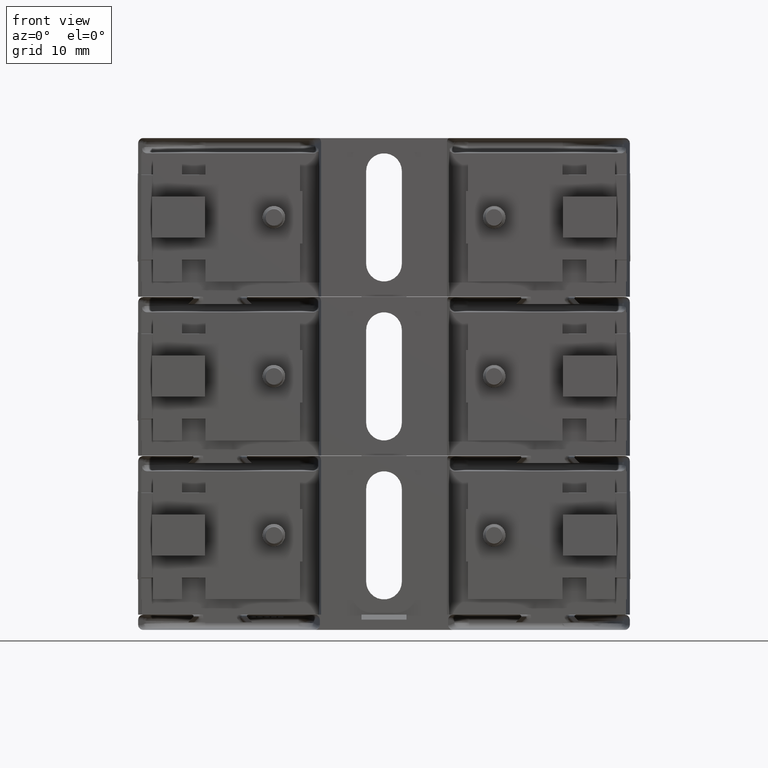
[diagram: clean part render]
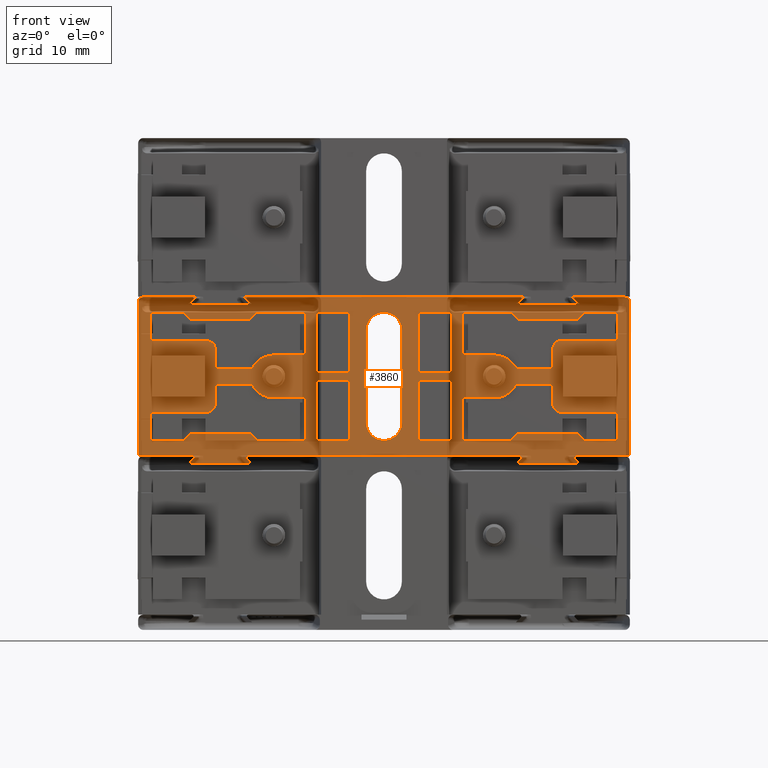
[diagram: same view with one face highlighted and labeled with its STEP entity id]
A machine part, front view. The second image highlights one B-rep face of the part: STEP entity #3860.
In plain terms, the highlighted planar face has unit normal (0, 1, 0).
Its self-contained STEP definition (entity closure, byte-faithful):
#85 = ORIENTED_EDGE ( 'NONE', *, *, #126002, .T. ) ;
#122 = EDGE_CURVE ( 'NONE', #80820, #114940, #123643, .T. ) ;
#136 = DIRECTION ( 'NONE',  ( 0.0000000000000000000, -0.0000000000000000000, 1.000000000000000000 ) ) ;
#601 = CARTESIAN_POINT ( 'NONE',  ( 0.8151644632138831400, 0.0000000000000000000, 0.9801644632138826200 ) ) ;
#657 = LINE ( 'NONE', #119536, #96366 ) ;
#721 = LINE ( 'NONE', #65111, #53353 ) ;
#1025 = LINE ( 'NONE', #38574, #99843 ) ;
#1164 = CARTESIAN_POINT ( 'NONE',  ( 0.8055000000000005500, 0.0000000000000000000, 0.002500000000000041700 ) ) ;
#1319 = CARTESIAN_POINT ( 'NONE',  ( -1.422999999999999800, 0.0000000000000000000, 0.3144999999999998900 ) ) ;
#1467 = VECTOR ( 'NONE', #71522, 39.37007874015748100 ) ;
#1766 = VECTOR ( 'NONE', #5765, 39.37007874015748100 ) ;
#1779 = CARTESIAN_POINT ( 'NONE',  ( 1.170349244118126900, -2.667820306312757000E-019, 0.9704999999999999200 ) ) ;
#1814 = LINE ( 'NONE', #114080, #100659 ) ;
#2145 = CARTESIAN_POINT ( 'NONE',  ( -0.6720000000000001500, 0.0000000000000000000, 0.5125000000000000700 ) ) ;
#2199 = ORIENTED_EDGE ( 'NONE', *, *, #74784, .T. ) ;
#2414 = EDGE_CURVE ( 'NONE', #45051, #50281, #51223, .T. ) ;
#2421 = VECTOR ( 'NONE', #17572, 39.37007874015748100 ) ;
#2452 = FACE_BOUND ( 'NONE', #127512, .T. ) ;
#2456 = CARTESIAN_POINT ( 'NONE',  ( 0.8515000000000012600, 0.0000000000000000000, 1.016500000000000200 ) ) ;
#2660 = VECTOR ( 'NONE', #95741, 39.37007874015748100 ) ;
#2774 = VERTEX_POINT ( 'NONE', #51429 ) ;
#2793 = DIRECTION ( 'NONE',  ( 0.0000000000000000000, 0.0000000000000000000, -1.000000000000000000 ) ) ;
#3027 = LINE ( 'NONE', #27363, #52567 ) ;
#3579 = CARTESIAN_POINT ( 'NONE',  ( -0.6720000000000006000, 0.0000000000000000000, 0.4014999999999998600 ) ) ;
#3659 = CARTESIAN_POINT ( 'NONE',  ( -0.2089999999999999600, 0.0000000000000000000, 0.9234999999999999900 ) ) ;
#3664 = DIRECTION ( 'NONE',  ( 0.0000000000000000000, 1.000000000000000000, 0.0000000000000000000 ) ) ;
#3720 = ORIENTED_EDGE ( 'NONE', *, *, #38217, .T. ) ;
#3860 = ADVANCED_FACE ( 'NONE', ( #84361, #107523, #58129, #110614, #31882, #81310, #55060, #28764, #2452, #104441 ), #88873, .T. ) ;
#4082 = ORIENTED_EDGE ( 'NONE', *, *, #19436, .T. ) ;
#4150 = VECTOR ( 'NONE', #84916, 39.37007874015748100 ) ;
#4168 = EDGE_CURVE ( 'NONE', #121048, #34629, #721, .T. ) ;
#4186 = CARTESIAN_POINT ( 'NONE',  ( 1.080000000000000300, 0.0000000000000000000, 0.3144999999999995600 ) ) ;
#4235 = CARTESIAN_POINT ( 'NONE',  ( 0.4809999999999999800, 0.0000000000000000000, 0.6634999999999998700 ) ) ;
#4268 = ORIENTED_EDGE ( 'NONE', *, *, #77308, .T. ) ;
#4283 = EDGE_CURVE ( 'NONE', #34695, #80820, #57853, .T. ) ;
#4372 = ORIENTED_EDGE ( 'NONE', *, *, #70051, .T. ) ;
#4378 = CARTESIAN_POINT ( 'NONE',  ( -1.422999999999999800, 0.0000000000000000000, 1.016500000000000200 ) ) ;
#4421 = CARTESIAN_POINT ( 'NONE',  ( 1.170349244118126900, -2.667820306312757000E-019, 0.9704999999999999200 ) ) ;
#4565 = VECTOR ( 'NONE', #114864, 39.37007874015748100 ) ;
#5056 = ORIENTED_EDGE ( 'NONE', *, *, #59887, .T. ) ;
#5129 = EDGE_CURVE ( 'NONE', #77823, #120429, #98910, .T. ) ;
#5652 = CARTESIAN_POINT ( 'NONE',  ( -1.030000000000000000, 0.0000000000000000000, 1.016500000000000200 ) ) ;
#5765 = DIRECTION ( 'NONE',  ( -1.000000000000000000, -0.0000000000000000000, -0.0000000000000000000 ) ) ;
#5772 = LINE ( 'NONE', #98328, #81552 ) ;
#5832 = DIRECTION ( 'NONE',  ( -1.000000000000000000, -0.0000000000000000000, -0.0000000000000000000 ) ) ;
#6044 = CARTESIAN_POINT ( 'NONE',  ( -1.468981104126736200, 0.0000000000000000000, 1.016500000000000200 ) ) ;
#6094 = CARTESIAN_POINT ( 'NONE',  ( 1.500000000000000200, 0.0000000000000000000, 0.3144999999999998900 ) ) ;
#6520 = EDGE_CURVE ( 'NONE', #103391, #77639, #98190, .T. ) ;
#6632 = VECTOR ( 'NONE', #111865, 39.37007874015748100 ) ;
#6907 = LINE ( 'NONE', #25448, #59522 ) ;
#7048 = ORIENTED_EDGE ( 'NONE', *, *, #36359, .T. ) ;
#7135 = EDGE_CURVE ( 'NONE', #127420, #28870, #6907, .T. ) ;
#7358 = VERTEX_POINT ( 'NONE', #47030 ) ;
#7766 = CARTESIAN_POINT ( 'NONE',  ( -1.172650755881873300, 0.0000000000000000000, 0.04850000000000005000 ) ) ;
#7877 = EDGE_CURVE ( 'NONE', #14172, #26125, #51414, .T. ) ;
#8013 = AXIS2_PLACEMENT_3D ( 'NONE', #112671, #53613, #122597 ) ;
#8142 = ORIENTED_EDGE ( 'NONE', *, *, #58872, .T. ) ;
#8303 = VERTEX_POINT ( 'NONE', #43006 ) ;
#8690 = VERTEX_POINT ( 'NONE', #63611 ) ;
#8715 = CARTESIAN_POINT ( 'NONE',  ( -1.225000000000000500, 1.707404996040164500E-017, 0.9234999999999998800 ) ) ;
#9207 = CARTESIAN_POINT ( 'NONE',  ( 1.165566760308408800, -6.829619984160658000E-017, 0.03143323969159162600 ) ) ;
#9267 = VECTOR ( 'NONE', #119740, 39.37007874015748100 ) ;
#9325 = VECTOR ( 'NONE', #128022, 39.37007874015748100 ) ;
#9341 = CARTESIAN_POINT ( 'NONE',  ( 1.500000000000000200, 0.0000000000000000000, 0.9704999999999999200 ) ) ;
#9738 = CARTESIAN_POINT ( 'NONE',  ( 0.6720000000000009300, 0.0000000000000000000, 0.5524999999999997700 ) ) ;
#9975 = EDGE_CURVE ( 'NONE', #40726, #57870, #42277, .T. ) ;
#10086 = EDGE_CURVE ( 'NONE', #77207, #72310, #60655, .T. ) ;
#10182 = DIRECTION ( 'NONE',  ( -1.000000000000000000, -0.0000000000000000000, -0.0000000000000000000 ) ) ;
#10236 = DIRECTION ( 'NONE',  ( 1.000000000000000000, 0.0000000000000000000, 0.0000000000000000000 ) ) ;
#10459 = ORIENTED_EDGE ( 'NONE', *, *, #78056, .T. ) ;
#10571 = CARTESIAN_POINT ( 'NONE',  ( 0.8296507558818743100, 3.414809992080329000E-017, 0.9704999999999999200 ) ) ;
#10753 = LINE ( 'NONE', #24821, #63350 ) ;
#11173 = CARTESIAN_POINT ( 'NONE',  ( -0.4810000000000004300, 0.0000000000000000000, 0.1414999999999999000 ) ) ;
#11506 = LINE ( 'NONE', #33203, #76412 ) ;
#11537 = LINE ( 'NONE', #24987, #34722 ) ;
#11912 = LINE ( 'NONE', #72875, #113849 ) ;
#12004 = VERTEX_POINT ( 'NONE', #79199 ) ;
#12042 =( BOUNDED_CURVE ( )  B_SPLINE_CURVE ( 3, ( #72597, #92442, #43383, #112303 ),
 .UNSPECIFIED., .F., .F. ) 
 B_SPLINE_CURVE_WITH_KNOTS ( ( 4, 4 ),
 ( 1.570796326794951200, 3.926381829401622200 ),
 .UNSPECIFIED. ) 
 CURVE ( )  GEOMETRIC_REPRESENTATION_ITEM ( )  RATIONAL_B_SPLINE_CURVE ( ( 1.000000000000000000, 0.5886431534687953700, 0.5886431534687953700, 1.000000000000000000 ) ) 
 REPRESENTATION_ITEM ( '' )  );
#12091 = CARTESIAN_POINT ( 'NONE',  ( 1.177433239691592100, 0.0000000000000000000, 0.9875667603084084000 ) ) ;
#12125 = DIRECTION ( 'NONE',  ( 0.0000000000000000000, 0.0000000000000000000, -1.000000000000000000 ) ) ;
#12234 = CARTESIAN_POINT ( 'NONE',  ( -0.4129999999999999200, 0.0000000000000000000, 0.5094999999999998400 ) ) ;
#12517 = ORIENTED_EDGE ( 'NONE', *, *, #115254, .T. ) ;
#12705 = ORIENTED_EDGE ( 'NONE', *, *, #107588, .T. ) ;
#13116 = DIRECTION ( 'NONE',  ( -1.000000000000000000, -0.0000000000000000000, -0.0000000000000000000 ) ) ;
#13121 = CARTESIAN_POINT ( 'NONE',  ( -0.8191759459669003500, 0.0000000000000000000, 0.9705000000000000300 ) ) ;
#13297 = VERTEX_POINT ( 'NONE', #122726 ) ;
#13490 = VECTOR ( 'NONE', #76640, 39.37007874015748100 ) ;
#13667 = VECTOR ( 'NONE', #81522, 39.37007874015748100 ) ;
#13703 = ORIENTED_EDGE ( 'NONE', *, *, #30155, .T. ) ;
#13748 = LINE ( 'NONE', #37198, #115679 ) ;
#13883 = VERTEX_POINT ( 'NONE', #72100 ) ;
#14138 = AXIS2_PLACEMENT_3D ( 'NONE', #62923, #3664, #72775 ) ;
#14156 = VERTEX_POINT ( 'NONE', #3659 ) ;
#14172 = VERTEX_POINT ( 'NONE', #103404 ) ;
#14360 = DIRECTION ( 'NONE',  ( -0.0000000000000000000, 0.0000000000000000000, -1.000000000000000000 ) ) ;
#14672 = CARTESIAN_POINT ( 'NONE',  ( 0.8225667603084092500, -3.414809992080329000E-017, 0.9875667603084085100 ) ) ;
#15200 = CARTESIAN_POINT ( 'NONE',  ( -1.422999999999999800, 0.0000000000000000000, 0.9234999999999999900 ) ) ;
#15264 = VECTOR ( 'NONE', #94625, 39.37007874015748100 ) ;
#15311 = DIRECTION ( 'NONE',  ( 0.0000000000000000000, 1.000000000000000000, 0.0000000000000000000 ) ) ;
#15878 = CARTESIAN_POINT ( 'NONE',  ( 1.422999999999999800, 0.0000000000000000000, 1.016500000000000200 ) ) ;
#15892 = VECTOR ( 'NONE', #39484, 39.37007874015748100 ) ;
#16019 = VERTEX_POINT ( 'NONE', #87791 ) ;
#16077 = CARTESIAN_POINT ( 'NONE',  ( 0.8378240540331005600, 0.0000000000000000000, 0.04850000000000019600 ) ) ;
#16105 = DIRECTION ( 'NONE',  ( -1.000000000000000000, -0.0000000000000000000, -0.0000000000000000000 ) ) ;
#16532 = EDGE_CURVE ( 'NONE', #23853, #56909, #55911, .T. ) ;
#16558 = CARTESIAN_POINT ( 'NONE',  ( -0.2089999999999998800, 0.0000000000000000000, 1.016500000000000200 ) ) ;
#16664 = CARTESIAN_POINT ( 'NONE',  ( -1.180824054033100100, 0.0000000000000000000, 0.9704999999999997000 ) ) ;
#16941 = ORIENTED_EDGE ( 'NONE', *, *, #87225, .T. ) ;
#17035 = CARTESIAN_POINT ( 'NONE',  ( -1.194499999999999200, 0.0000000000000000000, 0.002500000000000041700 ) ) ;
#17074 = LINE ( 'NONE', #16558, #40309 ) ;
#17184 = ORIENTED_EDGE ( 'NONE', *, *, #97533, .T. ) ;
#17352 = CARTESIAN_POINT ( 'NONE',  ( 1.500000000000000200, 0.0000000000000000000, 0.1414999999999999900 ) ) ;
#17435 = CARTESIAN_POINT ( 'NONE',  ( -0.8344332396915911100, 0.0000000000000000000, 0.03143323969159162600 ) ) ;
#17572 = DIRECTION ( 'NONE',  ( -1.000000000000000000, -0.0000000000000000000, -0.0000000000000000000 ) ) ;
#17880 = CARTESIAN_POINT ( 'NONE',  ( -1.225000000000001200, 0.0000000000000000000, 0.1414999999999998500 ) ) ;
#18174 = EDGE_CURVE ( 'NONE', #59841, #83495, #83192, .T. ) ;
#18197 = EDGE_CURVE ( 'NONE', #50281, #2774, #1025, .T. ) ;
#18212 = LINE ( 'NONE', #95171, #93834 ) ;
#18751 = VERTEX_POINT ( 'NONE', #113380 ) ;
#18967 = EDGE_CURVE ( 'NONE', #30403, #23853, #45899, .T. ) ;
#19214 = VERTEX_POINT ( 'NONE', #40267 ) ;
#19325 = DIRECTION ( 'NONE',  ( 1.000000000000000000, 0.0000000000000000000, 0.0000000000000000000 ) ) ;
#19436 = EDGE_CURVE ( 'NONE', #66061, #85817, #11537, .T. ) ;
#19493 = DIRECTION ( 'NONE',  ( -0.0000000000000000000, 0.0000000000000000000, -1.000000000000000000 ) ) ;
#19595 = EDGE_CURVE ( 'NONE', #53914, #82376, #125758, .T. ) ;
#19603 = VECTOR ( 'NONE', #125886, 39.37007874015748100 ) ;
#19623 = LINE ( 'NONE', #9341, #69062 ) ;
#19649 = CARTESIAN_POINT ( 'NONE',  ( 0.8190000000000012800, 1.707404996040164500E-017, 0.8794999999999997300 ) ) ;
#19724 = DIRECTION ( 'NONE',  ( -9.045854283656498200E-016, 0.0000000000000000000, -1.000000000000000000 ) ) ;
#19739 = DIRECTION ( 'NONE',  ( 0.0000000000000000000, -0.0000000000000000000, 1.000000000000000000 ) ) ;
#19799 = VECTOR ( 'NONE', #21494, 39.37007874015748100 ) ;
#19869 = CARTESIAN_POINT ( 'NONE',  ( -0.4129999999999999200, 0.0000000000000000000, 0.5555000000000001000 ) ) ;
#19955 = VERTEX_POINT ( 'NONE', #19649 ) ;
#20063 = VECTOR ( 'NONE', #72539, 39.37007874015748100 ) ;
#20138 = EDGE_CURVE ( 'NONE', #123596, #116166, #50034, .T. ) ;
#20190 = CARTESIAN_POINT ( 'NONE',  ( -0.8190000000000016200, 0.0000000000000000000, 0.1854999999999999700 ) ) ;
#20257 = DIRECTION ( 'NONE',  ( -0.0000000000000000000, 1.000000000000000000, 0.0000000000000000000 ) ) ;
#20319 = DIRECTION ( 'NONE',  ( -0.0000000000000000000, 1.000000000000000000, -0.0000000000000000000 ) ) ;
#20442 = VERTEX_POINT ( 'NONE', #57911 ) ;
#20448 = CARTESIAN_POINT ( 'NONE',  ( 1.500000000000000200, 0.0000000000000000000, 0.04850000000000004300 ) ) ;
#20456 = VERTEX_POINT ( 'NONE', #48022 ) ;
#20492 = CARTESIAN_POINT ( 'NONE',  ( -0.8225667603084090300, 0.0000000000000000000, 0.9875667603084084000 ) ) ;
#20592 = ORIENTED_EDGE ( 'NONE', *, *, #63485, .T. ) ;
#20597 = DIRECTION ( 'NONE',  ( -1.000000000000000000, -0.0000000000000000000, -0.0000000000000000000 ) ) ;
#20631 = EDGE_CURVE ( 'NONE', #115197, #45435, #94377, .T. ) ;
#20831 = ORIENTED_EDGE ( 'NONE', *, *, #54760, .T. ) ;
#20832 =( BOUNDED_CURVE ( )  B_SPLINE_CURVE ( 3, ( #85105, #75183, #16077, #26010 ),
 .UNSPECIFIED., .F., .F. ) 
 B_SPLINE_CURVE_WITH_KNOTS ( ( 4, 4 ),
 ( 2.356803477777964500, 4.712388980384703000 ),
 .UNSPECIFIED. ) 
 CURVE ( )  GEOMETRIC_REPRESENTATION_ITEM ( )  RATIONAL_B_SPLINE_CURVE ( ( 1.000000000000000000, 0.5886431534687746000, 0.5886431534687746000, 1.000000000000000000 ) ) 
 REPRESENTATION_ITEM ( '' )  );
#21161 = VECTOR ( 'NONE', #38670, 39.37007874015748100 ) ;
#21188 = ORIENTED_EDGE ( 'NONE', *, *, #115961, .T. ) ;
#21205 = CARTESIAN_POINT ( 'NONE',  ( 0.4810000000000004300, 0.0000000000000000000, 0.1414999999999998500 ) ) ;
#21286 = EDGE_CURVE ( 'NONE', #39628, #43770, #53881, .T. ) ;
#21494 = DIRECTION ( 'NONE',  ( -0.7071067811865453500, 0.0000000000000000000, -0.7071067811865496800 ) ) ;
#21577 = CIRCLE ( 'NONE', #57697, 0.1510000000000001100 ) ;
#21652 = CARTESIAN_POINT ( 'NONE',  ( 0.4130000000000002000, 0.0000000000000000000, 0.1414999999999998500 ) ) ;
#21684 = CARTESIAN_POINT ( 'NONE',  ( 1.500000000000000200, 0.0000000000000000000, 0.002500000000000041700 ) ) ;
#21700 = CARTESIAN_POINT ( 'NONE',  ( 1.177433239691592100, -6.829619984160658000E-017, 0.9875667603084084000 ) ) ;
#22457 = ORIENTED_EDGE ( 'NONE', *, *, #74216, .T. ) ;
#22617 = ORIENTED_EDGE ( 'NONE', *, *, #24196, .T. ) ;
#22634 = CARTESIAN_POINT ( 'NONE',  ( 1.500000000000000200, 0.0000000000000000000, 0.9234999999999999900 ) ) ;
#22708 = LINE ( 'NONE', #93293, #98288 ) ;
#22854 = VERTEX_POINT ( 'NONE', #36747 ) ;
#23163 = ORIENTED_EDGE ( 'NONE', *, *, #120895, .T. ) ;
#23339 = VECTOR ( 'NONE', #19739, 39.37007874015748100 ) ;
#23419 = CARTESIAN_POINT ( 'NONE',  ( -0.1090000000000000600, 0.0000000000000000000, 0.2505000000000001100 ) ) ;
#23474 = EDGE_CURVE ( 'NONE', #43074, #116721, #111302, .T. ) ;
#23475 = DIRECTION ( 'NONE',  ( -1.000000000000000000, -0.0000000000000000000, -0.0000000000000000000 ) ) ;
#23533 = ORIENTED_EDGE ( 'NONE', *, *, #27850, .T. ) ;
#23612 = CARTESIAN_POINT ( 'NONE',  ( 1.030000000000000200, 0.0000000000000000000, 0.4854999999999996500 ) ) ;
#23734 = EDGE_CURVE ( 'NONE', #93076, #53914, #3027, .T. ) ;
#23853 = VERTEX_POINT ( 'NONE', #88551 ) ;
#23891 = CARTESIAN_POINT ( 'NONE',  ( -1.080000000000000300, 0.0000000000000000000, 0.3644999999999998800 ) ) ;
#24172 = VECTOR ( 'NONE', #14360, 39.37007874015748100 ) ;
#24196 = EDGE_CURVE ( 'NONE', #43770, #16019, #104642, .T. ) ;
#24381 = EDGE_LOOP ( 'NONE', ( #4082, #118693, #22457, #68926 ) ) ;
#24516 = DIRECTION ( 'NONE',  ( -1.000000000000000000, -0.0000000000000000000, -0.0000000000000000000 ) ) ;
#24619 = EDGE_CURVE ( 'NONE', #51225, #73367, #79909, .T. ) ;
#24630 = LINE ( 'NONE', #28434, #123435 ) ;
#24821 = CARTESIAN_POINT ( 'NONE',  ( 1.165566760308409000, 0.0000000000000000000, 0.03143323969159162600 ) ) ;
#24901 = CARTESIAN_POINT ( 'NONE',  ( 0.8073218385922991100, 0.0000000000000000000, 0.4854999999999997100 ) ) ;
#24925 = CARTESIAN_POINT ( 'NONE',  ( 1.500000000000000200, 0.0000000000000000000, 0.8794999999999999500 ) ) ;
#24987 = CARTESIAN_POINT ( 'NONE',  ( 0.2090000000000001600, 0.0000000000000000000, 1.016500000000000200 ) ) ;
#25166 = VECTOR ( 'NONE', #89230, 39.37007874015748100 ) ;
#25448 = CARTESIAN_POINT ( 'NONE',  ( 1.500000000000000200, 0.0000000000000000000, 0.04850000000000004300 ) ) ;
#25637 = VECTOR ( 'NONE', #65539, 39.37007874015748100 ) ;
#25880 = VERTEX_POINT ( 'NONE', #115266 ) ;
#26010 = CARTESIAN_POINT ( 'NONE',  ( 0.8273492441181267100, 0.0000000000000000000, 0.04850000000000005000 ) ) ;
#26125 = VERTEX_POINT ( 'NONE', #101803 ) ;
#26135 = EDGE_CURVE ( 'NONE', #120119, #45051, #82142, .T. ) ;
#26217 = ORIENTED_EDGE ( 'NONE', *, *, #92906, .T. ) ;
#26331 = ORIENTED_EDGE ( 'NONE', *, *, #57569, .T. ) ;
#26360 = CARTESIAN_POINT ( 'NONE',  ( 0.4130000000000002000, 0.0000000000000000000, 1.016500000000000200 ) ) ;
#26370 = ORIENTED_EDGE ( 'NONE', *, *, #26135, .T. ) ;
#26445 = DIRECTION ( 'NONE',  ( 0.0000000000000000000, -0.0000000000000000000, 1.000000000000000000 ) ) ;
#26580 = CARTESIAN_POINT ( 'NONE',  ( -1.170349244118126200, 3.414809992080329000E-017, 0.9704999999999999200 ) ) ;
#27185 = ORIENTED_EDGE ( 'NONE', *, *, #50997, .T. ) ;
#27363 = CARTESIAN_POINT ( 'NONE',  ( 1.422999999999999800, 0.0000000000000000000, 1.016500000000000200 ) ) ;
#27561 = ORIENTED_EDGE ( 'NONE', *, *, #96123, .T. ) ;
#27634 = EDGE_CURVE ( 'NONE', #81355, #67855, #20832, .T. ) ;
#27850 = EDGE_CURVE ( 'NONE', #22854, #52410, #92446, .T. ) ;
#27980 = CIRCLE ( 'NONE', #65242, 0.05000000000000001000 ) ;
#28188 = CARTESIAN_POINT ( 'NONE',  ( -1.487151552639455400, 0.0000000000000000000, 1.016500000000000200 ) ) ;
#28268 = VERTEX_POINT ( 'NONE', #97353 ) ;
#28434 = CARTESIAN_POINT ( 'NONE',  ( 0.8190000000000011700, 0.0000000000000000000, 0.8794999999999998400 ) ) ;
#28764 = FACE_BOUND ( 'NONE', #104201, .T. ) ;
#28801 = VECTOR ( 'NONE', #5832, 39.37007874015748100 ) ;
#28870 = VERTEX_POINT ( 'NONE', #28911 ) ;
#28911 = CARTESIAN_POINT ( 'NONE',  ( 1.172650755881873700, 0.0000000000000000000, 0.04850000000000005000 ) ) ;
#29271 = ORIENTED_EDGE ( 'NONE', *, *, #62200, .T. ) ;
#29349 = CARTESIAN_POINT ( 'NONE',  ( -0.7750000000000009100, 1.707404996040164500E-017, 0.9235000000000001000 ) ) ;
#29862 = CARTESIAN_POINT ( 'NONE',  ( -1.422999999999999800, 0.0000000000000000000, 1.016500000000000200 ) ) ;
#30155 = EDGE_CURVE ( 'NONE', #28870, #90503, #12042, .T. ) ;
#30403 = VERTEX_POINT ( 'NONE', #11173 ) ;
#30437 = DIRECTION ( 'NONE',  ( -0.7071067811865524600, 0.0000000000000000000, 0.7071067811865424700 ) ) ;
#30583 = VERTEX_POINT ( 'NONE', #33609 ) ;
#30841 = VERTEX_POINT ( 'NONE', #58143 ) ;
#30875 = LINE ( 'NONE', #98693, #1467 ) ;
#30904 = LINE ( 'NONE', #35902, #4565 ) ;
#31216 = EDGE_CURVE ( 'NONE', #61046, #57380, #41432, .T. ) ;
#31626 = VECTOR ( 'NONE', #127174, 39.37007874015748100 ) ;
#31682 = CIRCLE ( 'NONE', #76419, 0.05000000000000001000 ) ;
#31710 = CARTESIAN_POINT ( 'NONE',  ( 1.500000000000000200, 0.0000000000000000000, 0.002500000000000041700 ) ) ;
#31882 = FACE_BOUND ( 'NONE', #42077, .T. ) ;
#32143 = VERTEX_POINT ( 'NONE', #23612 ) ;
#32516 = CARTESIAN_POINT ( 'NONE',  ( 1.030000000000000200, 0.0000000000000000000, 0.5794999999999999000 ) ) ;
#32715 = DIRECTION ( 'NONE',  ( 1.000000000000000000, 0.0000000000000000000, 0.0000000000000000000 ) ) ;
#32749 = CARTESIAN_POINT ( 'NONE',  ( 1.422999999999999800, 0.0000000000000000000, 0.7504999999999998300 ) ) ;
#32777 = CARTESIAN_POINT ( 'NONE',  ( 1.500000000000000200, 0.0000000000000000000, 0.9234999999999999900 ) ) ;
#32789 = EDGE_CURVE ( 'NONE', #28268, #12004, #73556, .T. ) ;
#32966 = CARTESIAN_POINT ( 'NONE',  ( -0.8151644632138831400, 0.0000000000000000000, 0.9801644632138825100 ) ) ;
#33174 =( BOUNDED_CURVE ( )  B_SPLINE_CURVE ( 3, ( #1779, #70899, #80846, #21700 ),
 .UNSPECIFIED., .F., .F. ) 
 B_SPLINE_CURVE_WITH_KNOTS ( ( 4, 4 ),
 ( 1.570796326794896600, 3.926381829401634200 ),
 .UNSPECIFIED. ) 
 CURVE ( )  GEOMETRIC_REPRESENTATION_ITEM ( )  RATIONAL_B_SPLINE_CURVE ( ( 1.000000000000000000, 0.5886431534687749400, 0.5886431534687749400, 1.000000000000000000 ) ) 
 REPRESENTATION_ITEM ( '' )  );
#33203 = CARTESIAN_POINT ( 'NONE',  ( 1.500000000000000200, 0.0000000000000000000, 1.016500000000000200 ) ) ;
#33495 = CARTESIAN_POINT ( 'NONE',  ( 0.0000000000000000000, 0.0000000000000000000, 0.2505000000000001100 ) ) ;
#33555 = CARTESIAN_POINT ( 'NONE',  ( 1.500000000000000200, 0.0000000000000000000, 0.9234999999999998800 ) ) ;
#33609 = CARTESIAN_POINT ( 'NONE',  ( 0.7750000000000012400, 1.707404996040164500E-017, 0.9234999999999998800 ) ) ;
#33811 = DIRECTION ( 'NONE',  ( 0.0000000000000000000, 0.0000000000000000000, -1.000000000000000000 ) ) ;
#33896 = AXIS2_PLACEMENT_3D ( 'NONE', #23891, #92896, #33811 ) ;
#34323 = ORIENTED_EDGE ( 'NONE', *, *, #90711, .T. ) ;
#34350 = VECTOR ( 'NONE', #120533, 39.37007874015748100 ) ;
#34384 = EDGE_CURVE ( 'NONE', #92681, #14172, #119068, .T. ) ;
#34575 = LINE ( 'NONE', #39770, #60878 ) ;
#34629 = VERTEX_POINT ( 'NONE', #83153 ) ;
#34695 = VERTEX_POINT ( 'NONE', #105155 ) ;
#34715 = CARTESIAN_POINT ( 'NONE',  ( 1.500000000000000200, 0.0000000000000000000, 0.1854999999999999700 ) ) ;
#34722 = VECTOR ( 'NONE', #84091, 39.37007874015748100 ) ;
#35525 = CARTESIAN_POINT ( 'NONE',  ( 1.500000000000000400, 0.0000000000000000000, 1.003659379566433900 ) ) ;
#35570 = ORIENTED_EDGE ( 'NONE', *, *, #85905, .T. ) ;
#35653 = CARTESIAN_POINT ( 'NONE',  ( -1.030000000000000000, 0.0000000000000000000, 0.5795000000000000200 ) ) ;
#35806 =( BOUNDED_CURVE ( )  B_SPLINE_CURVE ( 3, ( #67047, #116172, #126131, #7766 ),
 .UNSPECIFIED., .F., .F. ) 
 B_SPLINE_CURVE_WITH_KNOTS ( ( 4, 4 ),
 ( 2.356803477777949900, 4.712388980384689700 ),
 .UNSPECIFIED. ) 
 CURVE ( )  GEOMETRIC_REPRESENTATION_ITEM ( )  RATIONAL_B_SPLINE_CURVE ( ( 1.000000000000000000, 0.5886431534687741600, 0.5886431534687741600, 1.000000000000000000 ) ) 
 REPRESENTATION_ITEM ( '' )  );
#35902 = CARTESIAN_POINT ( 'NONE',  ( 0.4810000000000004300, 0.0000000000000000000, 1.016500000000000200 ) ) ;
#36108 = DIRECTION ( 'NONE',  ( 0.0000000000000000000, -0.0000000000000000000, 1.000000000000000000 ) ) ;
#36230 = DIRECTION ( 'NONE',  ( 1.000000000000000000, 0.0000000000000000000, 0.0000000000000000000 ) ) ;
#36241 = CARTESIAN_POINT ( 'NONE',  ( -0.4129999999999999200, 0.0000000000000000000, 1.016500000000000200 ) ) ;
#36318 = VERTEX_POINT ( 'NONE', #85287 ) ;
#36359 = EDGE_CURVE ( 'NONE', #45435, #43074, #18212, .T. ) ;
#36725 = CARTESIAN_POINT ( 'NONE',  ( -1.030000000000000500, 0.0000000000000000000, 1.016500000000000200 ) ) ;
#36747 = CARTESIAN_POINT ( 'NONE',  ( 1.177433239691592100, -6.829619984160658000E-017, 0.9875667603084084000 ) ) ;
#36829 = LINE ( 'NONE', #38683, #124839 ) ;
#36915 = DIRECTION ( 'NONE',  ( 0.7071067811865441300, 0.0000000000000000000, 0.7071067811865509000 ) ) ;
#36958 = ORIENTED_EDGE ( 'NONE', *, *, #77720, .T. ) ;
#37005 = ORIENTED_EDGE ( 'NONE', *, *, #46889, .T. ) ;
#37020 = CARTESIAN_POINT ( 'NONE',  ( -0.8378240540330997900, 0.0000000000000000000, 0.04849999999999991100 ) ) ;
#37113 = DIRECTION ( 'NONE',  ( 1.000000000000000000, 0.0000000000000000000, 0.0000000000000000000 ) ) ;
#37198 = CARTESIAN_POINT ( 'NONE',  ( 0.4809999999999999800, 0.0000000000000000000, 1.016500000000000200 ) ) ;
#37310 = DIRECTION ( 'NONE',  ( 0.7071067811865458000, 0.0000000000000000000, -0.7071067811865492400 ) ) ;
#38091 = DIRECTION ( 'NONE',  ( 0.0000000000000000000, -0.0000000000000000000, 1.000000000000000000 ) ) ;
#38113 = VERTEX_POINT ( 'NONE', #96878 ) ;
#38217 = EDGE_CURVE ( 'NONE', #107025, #105566, #58219, .T. ) ;
#38406 = DIRECTION ( 'NONE',  ( -0.7071067811865474600, 0.0000000000000000000, 0.7071067811865474600 ) ) ;
#38461 = VERTEX_POINT ( 'NONE', #42867 ) ;
#38511 = VERTEX_POINT ( 'NONE', #4235 ) ;
#38574 = CARTESIAN_POINT ( 'NONE',  ( 1.500000000000000200, 0.0000000000000000000, 0.7505000000000000600 ) ) ;
#38670 = DIRECTION ( 'NONE',  ( 1.000000000000000000, 0.0000000000000000000, 0.0000000000000000000 ) ) ;
#38683 = CARTESIAN_POINT ( 'NONE',  ( 1.500000000000000200, 0.0000000000000000000, 1.016500000000000200 ) ) ;
#38731 = LINE ( 'NONE', #89913, #9267 ) ;
#38735 = DIRECTION ( 'NONE',  ( 1.000000000000000000, 0.0000000000000000000, 0.0000000000000000000 ) ) ;
#38915 = ORIENTED_EDGE ( 'NONE', *, *, #20138, .T. ) ;
#39322 = DIRECTION ( 'NONE',  ( -1.000000000000000000, -0.0000000000000000000, -0.0000000000000000000 ) ) ;
#39396 = LINE ( 'NONE', #26360, #115011 ) ;
#39438 = EDGE_CURVE ( 'NONE', #116693, #77823, #1814, .T. ) ;
#39484 = DIRECTION ( 'NONE',  ( 1.000000000000000000, 0.0000000000000000000, 0.0000000000000000000 ) ) ;
#39535 = LINE ( 'NONE', #108559, #91957 ) ;
#39628 = VERTEX_POINT ( 'NONE', #126978 ) ;
#39662 = DIRECTION ( 'NONE',  ( 1.000000000000000000, 0.0000000000000000000, 0.0000000000000000000 ) ) ;
#39675 = CARTESIAN_POINT ( 'NONE',  ( 1.500000000000000200, 0.0000000000000000000, 0.3144999999999994500 ) ) ;
#39747 = ORIENTED_EDGE ( 'NONE', *, *, #27634, .T. ) ;
#39770 = CARTESIAN_POINT ( 'NONE',  ( 1.500000000000000200, 0.0000000000000000000, 0.5094999999999998400 ) ) ;
#40037 = VECTOR ( 'NONE', #81178, 39.37007874015748100 ) ;
#40125 = CARTESIAN_POINT ( 'NONE',  ( -1.422999999999999800, 0.0000000000000000000, 0.7505000000000000600 ) ) ;
#40267 = CARTESIAN_POINT ( 'NONE',  ( 1.225000000000001200, -1.707404996040164500E-017, 0.9234999999999995400 ) ) ;
#40309 = VECTOR ( 'NONE', #26445, 39.37007874015748100 ) ;
#40368 = VECTOR ( 'NONE', #39662, 39.37007874015748100 ) ;
#40566 = LINE ( 'NONE', #124081, #1766 ) ;
#40726 = VERTEX_POINT ( 'NONE', #35653 ) ;
#40907 = CARTESIAN_POINT ( 'NONE',  ( 1.422999999999999800, 0.0000000000000000000, 0.9234999999999995400 ) ) ;
#41225 = ORIENTED_EDGE ( 'NONE', *, *, #31216, .T. ) ;
#41432 = LINE ( 'NONE', #6094, #64526 ) ;
#41470 = CARTESIAN_POINT ( 'NONE',  ( -1.500000000000000200, 0.0000000000000000000, 0.04850000000000004300 ) ) ;
#41632 = CARTESIAN_POINT ( 'NONE',  ( -0.7750000000000016900, -1.707404996040164500E-017, 0.1415000000000000700 ) ) ;
#42077 = EDGE_LOOP ( 'NONE', ( #82289, #109123, #105829, #20592, #68209, #10459, #59128, #43020, #127889, #82182, #36958, #90623, #115369 ) ) ;
#42277 = LINE ( 'NONE', #118403, #15892 ) ;
#42330 = ORIENTED_EDGE ( 'NONE', *, *, #5129, .T. ) ;
#42747 = VECTOR ( 'NONE', #126534, 39.37007874015748100 ) ;
#42756 = VECTOR ( 'NONE', #96240, 39.37007874015748100 ) ;
#42763 = CARTESIAN_POINT ( 'NONE',  ( 0.8296507558818743100, 3.414809992080329000E-017, 0.9704999999999999200 ) ) ;
#42867 = CARTESIAN_POINT ( 'NONE',  ( -0.4129999999999999200, 0.0000000000000000000, 0.1414999999999998500 ) ) ;
#42968 = CARTESIAN_POINT ( 'NONE',  ( 1.500000000000000200, 0.0000000000000000000, 0.6634999999999998700 ) ) ;
#43006 = CARTESIAN_POINT ( 'NONE',  ( 0.4810000000000004300, 0.0000000000000000000, 0.4014999999999998000 ) ) ;
#43020 = ORIENTED_EDGE ( 'NONE', *, *, #7877, .T. ) ;
#43074 = VERTEX_POINT ( 'NONE', #43079 ) ;
#43079 = CARTESIAN_POINT ( 'NONE',  ( 0.4130000000000000900, 0.0000000000000000000, 0.9235000000000001000 ) ) ;
#43147 = LINE ( 'NONE', #2456, #13667 ) ;
#43200 = VECTOR ( 'NONE', #60374, 39.37007874015748100 ) ;
#43383 = CARTESIAN_POINT ( 'NONE',  ( 1.158164463213883400, 0.0000000000000000000, 0.03883553678611728600 ) ) ;
#43457 = DIRECTION ( 'NONE',  ( 0.0000000000000000000, -0.0000000000000000000, 1.000000000000000000 ) ) ;
#43488 = CARTESIAN_POINT ( 'NONE',  ( 0.8073218385922986700, 0.0000000000000000000, 0.5794999999999999000 ) ) ;
#43536 = DIRECTION ( 'NONE',  ( 8.881784197001252300E-016, 0.0000000000000000000, 1.000000000000000000 ) ) ;
#43770 = VERTEX_POINT ( 'NONE', #119191 ) ;
#43795 = DIRECTION ( 'NONE',  ( 0.0000000000000000000, -0.0000000000000000000, 1.000000000000000000 ) ) ;
#44142 = EDGE_CURVE ( 'NONE', #83495, #34695, #126268, .T. ) ;
#44317 = LINE ( 'NONE', #36241, #67451 ) ;
#44412 = VERTEX_POINT ( 'NONE', #72781 ) ;
#44706 = VECTOR ( 'NONE', #43457, 39.37007874015748100 ) ;
#44860 = VERTEX_POINT ( 'NONE', #12234 ) ;
#45051 = VERTEX_POINT ( 'NONE', #15200 ) ;
#45412 = LINE ( 'NONE', #5652, #94752 ) ;
#45435 = VERTEX_POINT ( 'NONE', #125668 ) ;
#45899 = LINE ( 'NONE', #115933, #19603 ) ;
#46022 = VERTEX_POINT ( 'NONE', #41470 ) ;
#46191 = ORIENTED_EDGE ( 'NONE', *, *, #116835, .T. ) ;
#46709 = VECTOR ( 'NONE', #37310, 39.37007874015748100 ) ;
#46715 = CARTESIAN_POINT ( 'NONE',  ( 1.500000000000000200, 0.0000000000000000000, 0.4014999999999999100 ) ) ;
#46889 = EDGE_CURVE ( 'NONE', #101218, #53105, #35806, .T. ) ;
#46914 = VECTOR ( 'NONE', #13116, 39.37007874015748100 ) ;
#47030 = CARTESIAN_POINT ( 'NONE',  ( -1.030000000000000000, 0.0000000000000000000, 0.7005000000000001200 ) ) ;
#47391 = EDGE_CURVE ( 'NONE', #112295, #123596, #88980, .T. ) ;
#47443 = VERTEX_POINT ( 'NONE', #85804 ) ;
#47463 = LINE ( 'NONE', #48167, #21161 ) ;
#47531 = ORIENTED_EDGE ( 'NONE', *, *, #114673, .T. ) ;
#47590 = CARTESIAN_POINT ( 'NONE',  ( 1.500000000000000200, 0.0000000000000000000, 0.1854999999999996900 ) ) ;
#47681 = VECTOR ( 'NONE', #115345, 39.37007874015748900 ) ;
#48022 = CARTESIAN_POINT ( 'NONE',  ( -0.8190000000000007300, 1.707404996040164500E-017, 0.8795000000000001700 ) ) ;
#48099 = VECTOR ( 'NONE', #19493, 39.37007874015748100 ) ;
#48167 = CARTESIAN_POINT ( 'NONE',  ( 1.500000000000000200, 0.0000000000000000000, 1.016500000000000200 ) ) ;
#48383 = ORIENTED_EDGE ( 'NONE', *, *, #18197, .T. ) ;
#48905 = EDGE_CURVE ( 'NONE', #81915, #18751, #92575, .T. ) ;
#49079 = CARTESIAN_POINT ( 'NONE',  ( 1.500000000000000200, 0.0000000000000000000, 0.9235000000000001000 ) ) ;
#49753 = EDGE_CURVE ( 'NONE', #38113, #38511, #13748, .T. ) ;
#50034 = LINE ( 'NONE', #22634, #46914 ) ;
#50036 = ORIENTED_EDGE ( 'NONE', *, *, #80365, .T. ) ;
#50281 = VERTEX_POINT ( 'NONE', #40125 ) ;
#50517 = DIRECTION ( 'NONE',  ( -0.7071067811865464600, 0.0000000000000000000, 0.7071067811865486800 ) ) ;
#50680 = ORIENTED_EDGE ( 'NONE', *, *, #21286, .T. ) ;
#50690 = ORIENTED_EDGE ( 'NONE', *, *, #69658, .T. ) ;
#50791 = VECTOR ( 'NONE', #76366, 39.37007874015748100 ) ;
#50799 = VERTEX_POINT ( 'NONE', #114845 ) ;
#50997 = EDGE_CURVE ( 'NONE', #47443, #44860, #34575, .T. ) ;
#51176 = CARTESIAN_POINT ( 'NONE',  ( -1.079999999999999800, 0.0000000000000000000, 0.7005000000000001200 ) ) ;
#51223 = LINE ( 'NONE', #29862, #48099 ) ;
#51225 = VERTEX_POINT ( 'NONE', #32749 ) ;
#51414 = LINE ( 'NONE', #124977, #127022 ) ;
#51429 = CARTESIAN_POINT ( 'NONE',  ( -1.079999999999999600, 0.0000000000000000000, 0.7505000000000000600 ) ) ;
#51836 = DIRECTION ( 'NONE',  ( -1.000000000000000000, -0.0000000000000000000, -0.0000000000000000000 ) ) ;
#52064 = VECTOR ( 'NONE', #36230, 39.37007874015748100 ) ;
#52410 = VERTEX_POINT ( 'NONE', #54878 ) ;
#52479 = ORIENTED_EDGE ( 'NONE', *, *, #68859, .T. ) ;
#52551 = CARTESIAN_POINT ( 'NONE',  ( 0.8344332396915922200, 0.0000000000000000000, 0.03143323969159163300 ) ) ;
#52567 = VECTOR ( 'NONE', #106343, 39.37007874015748100 ) ;
#52926 = CARTESIAN_POINT ( 'NONE',  ( 0.2090000000000001600, 0.0000000000000000000, 0.9235000000000001000 ) ) ;
#52936 = DIRECTION ( 'NONE',  ( -0.7071067811865474600, 0.0000000000000000000, -0.7071067811865474600 ) ) ;
#52987 = EDGE_CURVE ( 'NONE', #85817, #108447, #58823, .T. ) ;
#53105 = VERTEX_POINT ( 'NONE', #80608 ) ;
#53308 = CARTESIAN_POINT ( 'NONE',  ( -0.2089999999999998800, 0.0000000000000000000, 1.016500000000000200 ) ) ;
#53353 = VECTOR ( 'NONE', #113839, 39.37007874015748100 ) ;
#53613 = DIRECTION ( 'NONE',  ( 0.0000000000000000000, -1.000000000000000000, 0.0000000000000000000 ) ) ;
#53736 = ORIENTED_EDGE ( 'NONE', *, *, #18967, .T. ) ;
#53881 = LINE ( 'NONE', #125597, #50791 ) ;
#53888 = LINE ( 'NONE', #105428, #47681 ) ;
#53914 = VERTEX_POINT ( 'NONE', #107504 ) ;
#54321 = ORIENTED_EDGE ( 'NONE', *, *, #84387, .T. ) ;
#54425 = CARTESIAN_POINT ( 'NONE',  ( 0.2090000000000001600, 0.0000000000000000000, 1.016500000000000200 ) ) ;
#54760 = EDGE_CURVE ( 'NONE', #66878, #118405, #62673, .T. ) ;
#54840 = ORIENTED_EDGE ( 'NONE', *, *, #24619, .T. ) ;
#54878 = CARTESIAN_POINT ( 'NONE',  ( 1.148500000000000100, 0.0000000000000000000, 1.016500000000000200 ) ) ;
#55060 = FACE_BOUND ( 'NONE', #96519, .T. ) ;
#55098 = LINE ( 'NONE', #114225, #28801 ) ;
#55119 = LINE ( 'NONE', #85398, #52064 ) ;
#55311 = ORIENTED_EDGE ( 'NONE', *, *, #72962, .T. ) ;
#55314 = ORIENTED_EDGE ( 'NONE', *, *, #68939, .T. ) ;
#55445 = EDGE_CURVE ( 'NONE', #126410, #25880, #53888, .T. ) ;
#55911 = LINE ( 'NONE', #46715, #105315 ) ;
#55984 = EDGE_CURVE ( 'NONE', #118930, #30841, #55119, .T. ) ;
#56091 = DIRECTION ( 'NONE',  ( -0.0000000000000000000, 0.0000000000000000000, -1.000000000000000000 ) ) ;
#56392 = ORIENTED_EDGE ( 'NONE', *, *, #100574, .T. ) ;
#56422 = VECTOR ( 'NONE', #30437, 39.37007874015748900 ) ;
#56909 = VERTEX_POINT ( 'NONE', #3579 ) ;
#57242 = CARTESIAN_POINT ( 'NONE',  ( -0.8344332396915911100, -6.829619984160658000E-017, 0.03143323969159163300 ) ) ;
#57380 = VERTEX_POINT ( 'NONE', #1319 ) ;
#57492 = CIRCLE ( 'NONE', #14138, 0.1510000000000001100 ) ;
#57509 = CARTESIAN_POINT ( 'NONE',  ( 0.8273492441181267100, 0.0000000000000000000, 0.04850000000000005000 ) ) ;
#57569 = EDGE_CURVE ( 'NONE', #13883, #77207, #122351, .T. ) ;
#57697 = AXIS2_PLACEMENT_3D ( 'NONE', #2145, #71248, #12125 ) ;
#57853 = LINE ( 'NONE', #87439, #31626 ) ;
#57870 = VERTEX_POINT ( 'NONE', #71299 ) ;
#57911 = CARTESIAN_POINT ( 'NONE',  ( -0.8273492441181260500, 0.0000000000000000000, 0.04850000000000005000 ) ) ;
#58075 = ORIENTED_EDGE ( 'NONE', *, *, #39438, .T. ) ;
#58129 = FACE_BOUND ( 'NONE', #113018, .T. ) ;
#58143 = CARTESIAN_POINT ( 'NONE',  ( -0.2089999999999999100, 0.0000000000000000000, 0.5555000000000001000 ) ) ;
#58211 = CARTESIAN_POINT ( 'NONE',  ( 1.422999999999999800, 0.0000000000000000000, 0.1414999999999996300 ) ) ;
#58219 =( BOUNDED_CURVE ( )  B_SPLINE_CURVE ( 3, ( #69728, #601, #59827, #10571 ),
 .UNSPECIFIED., .F., .F. ) 
 B_SPLINE_CURVE_WITH_KNOTS ( ( 4, 4 ),
 ( 2.356803477777932500, 4.712388980384689700 ),
 .UNSPECIFIED. ) 
 CURVE ( )  GEOMETRIC_REPRESENTATION_ITEM ( )  RATIONAL_B_SPLINE_CURVE ( ( 1.000000000000000000, 0.5886431534687688300, 0.5886431534687688300, 1.000000000000000000 ) ) 
 REPRESENTATION_ITEM ( '' )  );
#58315 =( BOUNDED_CURVE ( )  B_SPLINE_CURVE ( 3, ( #123551, #74795, #35525, #104589 ),
 .UNSPECIFIED., .F., .F. ) 
 B_SPLINE_CURVE_WITH_KNOTS ( ( 4, 4 ),
 ( 1.570796326794896600, 3.141592653589793100 ),
 .UNSPECIFIED. ) 
 CURVE ( )  GEOMETRIC_REPRESENTATION_ITEM ( )  RATIONAL_B_SPLINE_CURVE ( ( 1.000000000000000000, 0.8047378541243649400, 0.8047378541243649400, 1.000000000000000000 ) ) 
 REPRESENTATION_ITEM ( '' )  );
#58607 = CARTESIAN_POINT ( 'NONE',  ( 1.500000000000000200, 0.0000000000000000000, 1.016500000000000200 ) ) ;
#58777 = LINE ( 'NONE', #68953, #85034 ) ;
#58823 = LINE ( 'NONE', #106137, #111327 ) ;
#58872 = EDGE_CURVE ( 'NONE', #90503, #103391, #10753, .T. ) ;
#59128 = ORIENTED_EDGE ( 'NONE', *, *, #34384, .T. ) ;
#59161 = EDGE_CURVE ( 'NONE', #73616, #22854, #33174, .T. ) ;
#59407 = CARTESIAN_POINT ( 'NONE',  ( -0.4809999999999998700, 0.0000000000000000000, 0.6635000000000002000 ) ) ;
#59522 = VECTOR ( 'NONE', #84980, 39.37007874015748100 ) ;
#59666 = EDGE_CURVE ( 'NONE', #50799, #19955, #5772, .T. ) ;
#59728 = VECTOR ( 'NONE', #24516, 39.37007874015748100 ) ;
#59762 = CARTESIAN_POINT ( 'NONE',  ( -0.8515000000000010300, 6.669545818764883600E-020, 1.016500000000000200 ) ) ;
#59827 = CARTESIAN_POINT ( 'NONE',  ( 0.8191759459669003500, 0.0000000000000000000, 0.9704999999999999200 ) ) ;
#59841 = VERTEX_POINT ( 'NONE', #71179 ) ;
#59887 = EDGE_CURVE ( 'NONE', #124632, #112295, #11912, .T. ) ;
#59936 = ORIENTED_EDGE ( 'NONE', *, *, #32789, .T. ) ;
#60371 = CARTESIAN_POINT ( 'NONE',  ( 1.500000000000000200, 0.0000000000000000000, 0.9704999999999999200 ) ) ;
#60374 = DIRECTION ( 'NONE',  ( 0.7071067811865458000, 0.0000000000000000000, 0.7071067811865492400 ) ) ;
#60384 = VECTOR ( 'NONE', #38735, 39.37007874015748100 ) ;
#60432 = VERTEX_POINT ( 'NONE', #41632 ) ;
#60655 = LINE ( 'NONE', #21684, #34350 ) ;
#60878 = VECTOR ( 'NONE', #98746, 39.37007874015748100 ) ;
#61016 = EDGE_CURVE ( 'NONE', #32143, #117690, #101273, .T. ) ;
#61046 = VERTEX_POINT ( 'NONE', #115122 ) ;
#61109 = DIRECTION ( 'NONE',  ( 0.0000000000000000000, 0.0000000000000000000, -1.000000000000000000 ) ) ;
#61886 = ORIENTED_EDGE ( 'NONE', *, *, #120543, .T. ) ;
#61980 = VECTOR ( 'NONE', #36915, 39.37007874015748100 ) ;
#61999 = ORIENTED_EDGE ( 'NONE', *, *, #77121, .T. ) ;
#62024 = DIRECTION ( 'NONE',  ( -0.0000000000000000000, 1.000000000000000000, -0.0000000000000000000 ) ) ;
#62200 = EDGE_CURVE ( 'NONE', #116166, #20456, #71476, .T. ) ;
#62673 = LINE ( 'NONE', #20492, #56422 ) ;
#62705 = CARTESIAN_POINT ( 'NONE',  ( -0.1090000000000001200, 0.0000000000000000000, 1.016500000000000200 ) ) ;
#62923 = CARTESIAN_POINT ( 'NONE',  ( 0.6720000000000003700, 0.0000000000000000000, 0.5124999999999999600 ) ) ;
#63350 = VECTOR ( 'NONE', #93843, 39.37007874015748900 ) ;
#63485 = EDGE_CURVE ( 'NONE', #117690, #13297, #78453, .T. ) ;
#63611 = CARTESIAN_POINT ( 'NONE',  ( 1.468981104126736700, 0.0000000000000000000, 1.016500000000000200 ) ) ;
#63783 = VECTOR ( 'NONE', #112522, 39.37007874015748100 ) ;
#63829 = CARTESIAN_POINT ( 'NONE',  ( -0.6720000000000001500, 0.0000000000000000000, 0.6635000000000002000 ) ) ;
#63969 = ORIENTED_EDGE ( 'NONE', *, *, #6520, .T. ) ;
#64526 = VECTOR ( 'NONE', #16105, 39.37007874015748100 ) ;
#64765 = CARTESIAN_POINT ( 'NONE',  ( -0.4809999999999998700, 0.0000000000000000000, 1.016500000000000200 ) ) ;
#64820 = CARTESIAN_POINT ( 'NONE',  ( -0.2089999999999998800, 0.0000000000000000000, 0.1414999999999998500 ) ) ;
#65111 = CARTESIAN_POINT ( 'NONE',  ( -1.225000000000001000, 0.0000000000000000000, 0.1414999999999998500 ) ) ;
#65242 = AXIS2_PLACEMENT_3D ( 'NONE', #121094, #62024, #2793 ) ;
#65413 = CARTESIAN_POINT ( 'NONE',  ( 0.2090000000000001600, 0.0000000000000000000, 0.1414999999999998500 ) ) ;
#65518 = VECTOR ( 'NONE', #126195, 39.37007874015748100 ) ;
#65539 = DIRECTION ( 'NONE',  ( -1.000000000000000000, -0.0000000000000000000, -0.0000000000000000000 ) ) ;
#65832 = EDGE_CURVE ( 'NONE', #100457, #120119, #657, .T. ) ;
#65917 = DIRECTION ( 'NONE',  ( 0.7071067811865474600, 0.0000000000000000000, 0.7071067811865474600 ) ) ;
#66061 = VERTEX_POINT ( 'NONE', #73296 ) ;
#66816 = CARTESIAN_POINT ( 'NONE',  ( 1.500000000000000200, 0.0000000000000000000, 0.04850000000000004300 ) ) ;
#66878 = VERTEX_POINT ( 'NONE', #117497 ) ;
#67047 = CARTESIAN_POINT ( 'NONE',  ( -1.165566760308408100, -2.134256245050205600E-018, 0.03143323969159162600 ) ) ;
#67424 = VERTEX_POINT ( 'NONE', #96443 ) ;
#67451 = VECTOR ( 'NONE', #56091, 39.37007874015748100 ) ;
#67682 = ORIENTED_EDGE ( 'NONE', *, *, #23474, .T. ) ;
#67855 = VERTEX_POINT ( 'NONE', #57509 ) ;
#68175 = CARTESIAN_POINT ( 'NONE',  ( 0.8515000000000012600, -6.829619984160658000E-017, 1.016500000000000200 ) ) ;
#68209 = ORIENTED_EDGE ( 'NONE', *, *, #119485, .T. ) ;
#68328 = DIRECTION ( 'NONE',  ( 1.000000000000000000, 0.0000000000000000000, 0.0000000000000000000 ) ) ;
#68375 = EDGE_CURVE ( 'NONE', #19955, #30583, #24630, .T. ) ;
#68585 = LINE ( 'NONE', #116239, #65518 ) ;
#68859 = EDGE_CURVE ( 'NONE', #44412, #118930, #118542, .T. ) ;
#68914 = LINE ( 'NONE', #17352, #42756 ) ;
#68926 = ORIENTED_EDGE ( 'NONE', *, *, #78385, .T. ) ;
#68939 = EDGE_CURVE ( 'NONE', #70218, #127420, #36829, .T. ) ;
#68953 = CARTESIAN_POINT ( 'NONE',  ( 1.500000000000000200, 0.0000000000000000000, 0.4014999999999997500 ) ) ;
#69062 = VECTOR ( 'NONE', #19325, 39.37007874015748100 ) ;
#69281 = ORIENTED_EDGE ( 'NONE', *, *, #96040, .T. ) ;
#69357 = LINE ( 'NONE', #1164, #43200 ) ;
#69579 = CARTESIAN_POINT ( 'NONE',  ( -1.181000000000000900, 1.707404996040164500E-017, 0.8794999999999999500 ) ) ;
#69658 = EDGE_CURVE ( 'NONE', #77639, #81355, #69357, .T. ) ;
#69728 = CARTESIAN_POINT ( 'NONE',  ( 0.8225667603084092500, -3.414809992080329000E-017, 0.9875667603084085100 ) ) ;
#70051 = EDGE_CURVE ( 'NONE', #118405, #94973, #47463, .T. ) ;
#70139 = CARTESIAN_POINT ( 'NONE',  ( 0.4130000000000002000, 0.0000000000000000000, 0.5094999999999998400 ) ) ;
#70218 = VERTEX_POINT ( 'NONE', #99386 ) ;
#70317 = AXIS2_PLACEMENT_3D ( 'NONE', #33495, #102532, #43536 ) ;
#70899 = CARTESIAN_POINT ( 'NONE',  ( 1.180824054033100800, 0.0000000000000000000, 0.9705000000000000300 ) ) ;
#71179 = CARTESIAN_POINT ( 'NONE',  ( -1.499999999999999800, 0.0000000000000000000, 0.9855000000000000400 ) ) ;
#71240 = CARTESIAN_POINT ( 'NONE',  ( -0.8296507558818742000, -2.334342768023662200E-019, 0.9704999999999999200 ) ) ;
#71248 = DIRECTION ( 'NONE',  ( 0.0000000000000000000, 1.000000000000000000, 0.0000000000000000000 ) ) ;
#71299 = CARTESIAN_POINT ( 'NONE',  ( -0.8073218385922984500, 0.0000000000000000000, 0.5795000000000000200 ) ) ;
#71446 = ORIENTED_EDGE ( 'NONE', *, *, #10086, .T. ) ;
#71476 = LINE ( 'NONE', #72722, #94590 ) ;
#71522 = DIRECTION ( 'NONE',  ( 1.000000000000000000, 0.0000000000000000000, 0.0000000000000000000 ) ) ;
#71709 = VECTOR ( 'NONE', #38091, 39.37007874015748100 ) ;
#71879 = EDGE_CURVE ( 'NONE', #86832, #66878, #76213, .T. ) ;
#72100 = CARTESIAN_POINT ( 'NONE',  ( -0.8344332396915911100, -6.829619984160658000E-017, 0.03143323969159163300 ) ) ;
#72310 = VERTEX_POINT ( 'NONE', #110978 ) ;
#72539 = DIRECTION ( 'NONE',  ( -0.0000000000000000000, 0.0000000000000000000, -1.000000000000000000 ) ) ;
#72597 = CARTESIAN_POINT ( 'NONE',  ( 1.172650755881873700, 0.0000000000000000000, 0.04850000000000005000 ) ) ;
#72722 = CARTESIAN_POINT ( 'NONE',  ( -0.7750000000000009100, 0.0000000000000000000, 0.9235000000000001000 ) ) ;
#72775 = DIRECTION ( 'NONE',  ( -1.809170856731298800E-015, 0.0000000000000000000, -1.000000000000000000 ) ) ;
#72781 = CARTESIAN_POINT ( 'NONE',  ( -0.4129999999999999200, 0.0000000000000000000, 0.9234999999999999900 ) ) ;
#72875 = CARTESIAN_POINT ( 'NONE',  ( 1.500000000000000200, 0.0000000000000000000, 0.6635000000000002000 ) ) ;
#72962 = EDGE_CURVE ( 'NONE', #94973, #107025, #43147, .T. ) ;
#72972 = VECTOR ( 'NONE', #123422, 39.37007874015748100 ) ;
#73004 = EDGE_CURVE ( 'NONE', #60432, #30403, #115594, .T. ) ;
#73296 = CARTESIAN_POINT ( 'NONE',  ( 0.2090000000000001600, 0.0000000000000000000, 0.5094999999999998400 ) ) ;
#73322 = CARTESIAN_POINT ( 'NONE',  ( -0.8190000000000016200, 0.0000000000000000000, 0.1854999999999999700 ) ) ;
#73357 = VERTEX_POINT ( 'NONE', #70139 ) ;
#73367 = VERTEX_POINT ( 'NONE', #40907 ) ;
#73556 = CIRCLE ( 'NONE', #8013, 0.1089999999999999900 ) ;
#73616 = VERTEX_POINT ( 'NONE', #4421 ) ;
#74011 = LINE ( 'NONE', #53308, #44706 ) ;
#74216 = EDGE_CURVE ( 'NONE', #108447, #73357, #39396, .T. ) ;
#74431 = CARTESIAN_POINT ( 'NONE',  ( -0.6720000000000006000, 0.0000000000000000000, 0.5524999999999998800 ) ) ;
#74497 = ORIENTED_EDGE ( 'NONE', *, *, #4168, .T. ) ;
#74784 = EDGE_CURVE ( 'NONE', #12004, #81915, #101895, .T. ) ;
#74795 = CARTESIAN_POINT ( 'NONE',  ( 1.487151552639455600, 0.0000000000000000000, 1.016500000000000200 ) ) ;
#74828 = LINE ( 'NONE', #97093, #71709 ) ;
#74955 = LINE ( 'NONE', #60371, #127458 ) ;
#75183 = CARTESIAN_POINT ( 'NONE',  ( 0.8418355367861181100, 0.0000000000000000000, 0.03883553678611765400 ) ) ;
#75191 = EDGE_CURVE ( 'NONE', #38461, #105261, #30875, .T. ) ;
#75446 = ORIENTED_EDGE ( 'NONE', *, *, #73004, .T. ) ;
#75744 = CARTESIAN_POINT ( 'NONE',  ( -1.184835536786117600, 0.0000000000000000000, 0.9801644632138824000 ) ) ;
#76072 = CARTESIAN_POINT ( 'NONE',  ( 1.080000000000000300, 0.0000000000000000000, 0.7504999999999998300 ) ) ;
#76213 =( BOUNDED_CURVE ( )  B_SPLINE_CURVE ( 3, ( #82188, #13121, #32966, #102008 ),
 .UNSPECIFIED., .F., .F. ) 
 B_SPLINE_CURVE_WITH_KNOTS ( ( 4, 4 ),
 ( 1.570796326794896600, 3.926381829401634200 ),
 .UNSPECIFIED. ) 
 CURVE ( )  GEOMETRIC_REPRESENTATION_ITEM ( )  RATIONAL_B_SPLINE_CURVE ( ( 1.000000000000000000, 0.5886431534687749400, 0.5886431534687749400, 1.000000000000000000 ) ) 
 REPRESENTATION_ITEM ( '' )  );
#76285 = ORIENTED_EDGE ( 'NONE', *, *, #90935, .T. ) ;
#76366 = DIRECTION ( 'NONE',  ( -1.000000000000000000, -0.0000000000000000000, -0.0000000000000000000 ) ) ;
#76412 = VECTOR ( 'NONE', #102244, 39.37007874015748100 ) ;
#76419 = AXIS2_PLACEMENT_3D ( 'NONE', #51176, #120208, #61109 ) ;
#76542 = ORIENTED_EDGE ( 'NONE', *, *, #116390, .T. ) ;
#76640 = DIRECTION ( 'NONE',  ( -0.0000000000000000000, 0.0000000000000000000, -1.000000000000000000 ) ) ;
#77121 = EDGE_CURVE ( 'NONE', #101768, #60432, #100793, .T. ) ;
#77207 = VERTEX_POINT ( 'NONE', #100384 ) ;
#77308 = EDGE_CURVE ( 'NONE', #36318, #116693, #57492, .T. ) ;
#77639 = VERTEX_POINT ( 'NONE', #98494 ) ;
#77720 = EDGE_CURVE ( 'NONE', #25880, #93076, #38731, .T. ) ;
#77823 = VERTEX_POINT ( 'NONE', #32516 ) ;
#77992 = ORIENTED_EDGE ( 'NONE', *, *, #20631, .T. ) ;
#78056 = EDGE_CURVE ( 'NONE', #8303, #92681, #30904, .T. ) ;
#78385 = EDGE_CURVE ( 'NONE', #73357, #66061, #115608, .T. ) ;
#78453 = CIRCLE ( 'NONE', #89554, 0.1510000000000000500 ) ;
#78589 = CARTESIAN_POINT ( 'NONE',  ( 1.194500000000000600, -6.829619984160658000E-017, 0.002500000000000059900 ) ) ;
#78662 = ORIENTED_EDGE ( 'NONE', *, *, #44142, .T. ) ;
#78858 = DIRECTION ( 'NONE',  ( 0.0000000000000000000, 1.000000000000000000, 0.0000000000000000000 ) ) ;
#78871 = CARTESIAN_POINT ( 'NONE',  ( 1.030000000000000200, 0.0000000000000000000, 1.016500000000000200 ) ) ;
#79199 = CARTESIAN_POINT ( 'NONE',  ( -0.1090000000000000100, 0.0000000000000000000, 0.8145000000000000000 ) ) ;
#79387 = CARTESIAN_POINT ( 'NONE',  ( 1.500000000000000200, 0.0000000000000000000, 1.016500000000000200 ) ) ;
#79440 = CARTESIAN_POINT ( 'NONE',  ( 1.080000000000000300, 0.0000000000000000000, 0.7004999999999997900 ) ) ;
#79491 = EDGE_CURVE ( 'NONE', #7358, #40726, #45412, .T. ) ;
#79852 = ORIENTED_EDGE ( 'NONE', *, *, #2414, .T. ) ;
#79909 = LINE ( 'NONE', #15878, #4150 ) ;
#80365 = EDGE_CURVE ( 'NONE', #67855, #20442, #40566, .T. ) ;
#80608 = CARTESIAN_POINT ( 'NONE',  ( -1.172650755881873300, 0.0000000000000000000, 0.04850000000000005000 ) ) ;
#80820 = VERTEX_POINT ( 'NONE', #92861 ) ;
#80846 = CARTESIAN_POINT ( 'NONE',  ( 1.184835536786118100, 0.0000000000000000000, 0.9801644632138825100 ) ) ;
#81060 = ORIENTED_EDGE ( 'NONE', *, *, #71879, .T. ) ;
#81178 = DIRECTION ( 'NONE',  ( -0.7071067811865492400, 0.0000000000000000000, 0.7071067811865459100 ) ) ;
#81310 = FACE_BOUND ( 'NONE', #114727, .T. ) ;
#81355 = VERTEX_POINT ( 'NONE', #52551 ) ;
#81438 = VERTEX_POINT ( 'NONE', #94674 ) ;
#81522 = DIRECTION ( 'NONE',  ( -0.7071067811865492400, 0.0000000000000000000, -0.7071067811865459100 ) ) ;
#81552 = VECTOR ( 'NONE', #39322, 39.37007874015748100 ) ;
#81851 = CIRCLE ( 'NONE', #97809, 0.1510000000000000500 ) ;
#81915 = VERTEX_POINT ( 'NONE', #23419 ) ;
#82142 = LINE ( 'NONE', #32777, #105303 ) ;
#82182 = ORIENTED_EDGE ( 'NONE', *, *, #55445, .T. ) ;
#82188 = CARTESIAN_POINT ( 'NONE',  ( -0.8296507558818742000, -2.334342768023662200E-019, 0.9704999999999999200 ) ) ;
#82289 = ORIENTED_EDGE ( 'NONE', *, *, #123301, .T. ) ;
#82376 = VERTEX_POINT ( 'NONE', #4186 ) ;
#82843 = ORIENTED_EDGE ( 'NONE', *, *, #91271, .T. ) ;
#82941 = ORIENTED_EDGE ( 'NONE', *, *, #59666, .T. ) ;
#83153 = CARTESIAN_POINT ( 'NONE',  ( -1.181000000000001400, 0.0000000000000000000, 0.1854999999999999100 ) ) ;
#83192 =( BOUNDED_CURVE ( )  B_SPLINE_CURVE ( 3, ( #95007, #97153, #28188, #127015 ),
 .UNSPECIFIED., .F., .F. ) 
 B_SPLINE_CURVE_WITH_KNOTS ( ( 4, 4 ),
 ( 3.141592653589793100, 4.712388980384698600 ),
 .UNSPECIFIED. ) 
 CURVE ( )  GEOMETRIC_REPRESENTATION_ITEM ( )  RATIONAL_B_SPLINE_CURVE ( ( 1.000000000000000000, 0.8047378541243628300, 0.8047378541243628300, 1.000000000000000000 ) ) 
 REPRESENTATION_ITEM ( '' )  );
#83495 = VERTEX_POINT ( 'NONE', #6044 ) ;
#84073 = EDGE_LOOP ( 'NONE', ( #96932, #82843, #59936, #2199 ) ) ;
#84091 = DIRECTION ( 'NONE',  ( -0.0000000000000000000, 0.0000000000000000000, -1.000000000000000000 ) ) ;
#84104 = DIRECTION ( 'NONE',  ( 0.0000000000000000000, -0.0000000000000000000, 1.000000000000000000 ) ) ;
#84354 = DIRECTION ( 'NONE',  ( 0.0000000000000000000, 0.0000000000000000000, -1.000000000000000000 ) ) ;
#84361 = FACE_OUTER_BOUND ( 'NONE', #104751, .T. ) ;
#84376 = ORIENTED_EDGE ( 'NONE', *, *, #9975, .T. ) ;
#84387 = EDGE_CURVE ( 'NONE', #14156, #44412, #68585, .T. ) ;
#84688 = DIRECTION ( 'NONE',  ( -0.0000000000000000000, 0.0000000000000000000, -1.000000000000000000 ) ) ;
#84916 = DIRECTION ( 'NONE',  ( 0.0000000000000000000, -0.0000000000000000000, 1.000000000000000000 ) ) ;
#84980 = DIRECTION ( 'NONE',  ( -1.000000000000000000, -0.0000000000000000000, -0.0000000000000000000 ) ) ;
#85034 = VECTOR ( 'NONE', #10182, 39.37007874015748100 ) ;
#85105 = CARTESIAN_POINT ( 'NONE',  ( 0.8344332396915922200, 0.0000000000000000000, 0.03143323969159163300 ) ) ;
#85287 = CARTESIAN_POINT ( 'NONE',  ( 0.6720000000000003700, 0.0000000000000000000, 0.6634999999999998700 ) ) ;
#85398 = CARTESIAN_POINT ( 'NONE',  ( 1.500000000000000200, 0.0000000000000000000, 0.5555000000000001000 ) ) ;
#85670 = CARTESIAN_POINT ( 'NONE',  ( -1.177433239691591400, 0.0000000000000000000, 0.9875667603084081800 ) ) ;
#85804 = CARTESIAN_POINT ( 'NONE',  ( -0.2089999999999998800, 0.0000000000000000000, 0.5094999999999998400 ) ) ;
#85817 = VERTEX_POINT ( 'NONE', #65413 ) ;
#85905 = EDGE_CURVE ( 'NONE', #72310, #101218, #88126, .T. ) ;
#85935 = LINE ( 'NONE', #24925, #59728 ) ;
#86221 = VECTOR ( 'NONE', #32715, 39.37007874015748100 ) ;
#86370 = CARTESIAN_POINT ( 'NONE',  ( -1.170349244118126200, 3.414809992080329000E-017, 0.9704999999999999200 ) ) ;
#86571 = LINE ( 'NONE', #107319, #60384 ) ;
#86832 = VERTEX_POINT ( 'NONE', #71240 ) ;
#86929 = ORIENTED_EDGE ( 'NONE', *, *, #98530, .T. ) ;
#87215 = ORIENTED_EDGE ( 'NONE', *, *, #93205, .T. ) ;
#87225 = EDGE_CURVE ( 'NONE', #114940, #86832, #19623, .T. ) ;
#87394 = ORIENTED_EDGE ( 'NONE', *, *, #75191, .T. ) ;
#87439 = CARTESIAN_POINT ( 'NONE',  ( -1.148500000000000300, 0.0000000000000000000, 1.016500000000000200 ) ) ;
#87791 = CARTESIAN_POINT ( 'NONE',  ( -1.030000000000000200, 0.0000000000000000000, 0.3644999999999998800 ) ) ;
#88126 = LINE ( 'NONE', #17035, #61980 ) ;
#88551 = CARTESIAN_POINT ( 'NONE',  ( -0.4810000000000004300, 0.0000000000000000000, 0.4014999999999999100 ) ) ;
#88554 = LINE ( 'NONE', #42968, #6632 ) ;
#88756 = CARTESIAN_POINT ( 'NONE',  ( 1.500000000000000200, 0.0000000000000000000, 0.1414999999999998500 ) ) ;
#88873 = PLANE ( 'NONE',  #112915 ) ;
#88936 =( BOUNDED_CURVE ( )  B_SPLINE_CURVE ( 3, ( #96429, #37020, #116361, #57242 ),
 .UNSPECIFIED., .F., .F. ) 
 B_SPLINE_CURVE_WITH_KNOTS ( ( 4, 4 ),
 ( 1.570796326794910300, 3.926381829401636400 ),
 .UNSPECIFIED. ) 
 CURVE ( )  GEOMETRIC_REPRESENTATION_ITEM ( )  RATIONAL_B_SPLINE_CURVE ( ( 1.000000000000000000, 0.5886431534687784900, 0.5886431534687784900, 1.000000000000000000 ) ) 
 REPRESENTATION_ITEM ( '' )  );
#88980 = LINE ( 'NONE', #64765, #112133 ) ;
#89079 = EDGE_LOOP ( 'NONE', ( #34323, #41225, #47531, #76285, #74497, #46191, #61999, #75446, #53736, #117800, #23163, #50680, #22617 ) ) ;
#89230 = DIRECTION ( 'NONE',  ( 0.7071067811865486800, 0.0000000000000000000, -0.7071067811865464600 ) ) ;
#89277 = ORIENTED_EDGE ( 'NONE', *, *, #122, .T. ) ;
#89310 = DIRECTION ( 'NONE',  ( 0.0000000000000000000, -0.0000000000000000000, 1.000000000000000000 ) ) ;
#89348 = VECTOR ( 'NONE', #51836, 39.37007874015748100 ) ;
#89372 = DIRECTION ( 'NONE',  ( 0.0000000000000000000, 0.0000000000000000000, -1.000000000000000000 ) ) ;
#89554 = AXIS2_PLACEMENT_3D ( 'NONE', #9738, #78858, #19724 ) ;
#89913 = CARTESIAN_POINT ( 'NONE',  ( 1.500000000000000200, 0.0000000000000000000, 0.1414999999999995700 ) ) ;
#89934 = ORIENTED_EDGE ( 'NONE', *, *, #105789, .T. ) ;
#90035 = EDGE_CURVE ( 'NONE', #19214, #50799, #95419, .T. ) ;
#90503 = VERTEX_POINT ( 'NONE', #9207 ) ;
#90623 = ORIENTED_EDGE ( 'NONE', *, *, #23734, .T. ) ;
#90711 = EDGE_CURVE ( 'NONE', #16019, #61046, #95202, .T. ) ;
#90935 = EDGE_CURVE ( 'NONE', #67424, #121048, #68914, .T. ) ;
#91271 = EDGE_CURVE ( 'NONE', #18751, #28268, #74828, .T. ) ;
#91312 = VECTOR ( 'NONE', #100970, 39.37007874015748100 ) ;
#91957 = VECTOR ( 'NONE', #136, 39.37007874015748100 ) ;
#92442 = CARTESIAN_POINT ( 'NONE',  ( 1.162175945966900300, 0.0000000000000000000, 0.04849999999999948800 ) ) ;
#92446 = LINE ( 'NONE', #12091, #40037 ) ;
#92575 = CIRCLE ( 'NONE', #70317, 0.1089999999999999900 ) ;
#92681 = VERTEX_POINT ( 'NONE', #21205 ) ;
#92861 = CARTESIAN_POINT ( 'NONE',  ( -1.177433239691591400, 0.0000000000000000000, 0.9875667603084081800 ) ) ;
#92896 = DIRECTION ( 'NONE',  ( -0.0000000000000000000, 1.000000000000000000, -0.0000000000000000000 ) ) ;
#92906 = EDGE_CURVE ( 'NONE', #44860, #38461, #44317, .T. ) ;
#93076 = VERTEX_POINT ( 'NONE', #58211 ) ;
#93205 = EDGE_CURVE ( 'NONE', #105566, #73616, #74955, .T. ) ;
#93293 = CARTESIAN_POINT ( 'NONE',  ( -1.500000000000000200, 0.0000000000000000000, 1.016500000000000200 ) ) ;
#93834 = VECTOR ( 'NONE', #36108, 39.37007874015748100 ) ;
#93843 = DIRECTION ( 'NONE',  ( 0.7071067811865474600, 0.0000000000000000000, -0.7071067811865474600 ) ) ;
#93986 = LINE ( 'NONE', #34715, #15264 ) ;
#94377 = LINE ( 'NONE', #121312, #91312 ) ;
#94590 = VECTOR ( 'NONE', #52936, 39.37007874015748900 ) ;
#94625 = DIRECTION ( 'NONE',  ( 1.000000000000000000, 0.0000000000000000000, 0.0000000000000000000 ) ) ;
#94674 = CARTESIAN_POINT ( 'NONE',  ( 1.030000000000000200, 0.0000000000000000000, 0.3644999999999996000 ) ) ;
#94752 = VECTOR ( 'NONE', #84688, 39.37007874015748100 ) ;
#94973 = VERTEX_POINT ( 'NONE', #68175 ) ;
#95007 = CARTESIAN_POINT ( 'NONE',  ( -1.499999999999999800, 0.0000000000000000000, 0.9855000000000000400 ) ) ;
#95064 = LINE ( 'NONE', #47590, #42747 ) ;
#95171 = CARTESIAN_POINT ( 'NONE',  ( 0.4130000000000002000, 0.0000000000000000000, 1.016500000000000200 ) ) ;
#95202 = CIRCLE ( 'NONE', #33896, 0.05000000000000001000 ) ;
#95302 = EDGE_CURVE ( 'NONE', #30583, #38113, #116240, .T. ) ;
#95354 = DIRECTION ( 'NONE',  ( 0.0000000000000000000, -0.0000000000000000000, 1.000000000000000000 ) ) ;
#95419 = LINE ( 'NONE', #110805, #19799 ) ;
#95741 = DIRECTION ( 'NONE',  ( -0.0000000000000000000, 0.0000000000000000000, -1.000000000000000000 ) ) ;
#96040 = EDGE_CURVE ( 'NONE', #8690, #70218, #58315, .T. ) ;
#96123 = EDGE_CURVE ( 'NONE', #30841, #14156, #17074, .T. ) ;
#96202 = VERTEX_POINT ( 'NONE', #76072 ) ;
#96240 = DIRECTION ( 'NONE',  ( 1.000000000000000000, 0.0000000000000000000, 0.0000000000000000000 ) ) ;
#96302 = VECTOR ( 'NONE', #20597, 39.37007874015748100 ) ;
#96366 = VECTOR ( 'NONE', #50517, 39.37007874015748100 ) ;
#96429 = CARTESIAN_POINT ( 'NONE',  ( -0.8273492441181260500, 0.0000000000000000000, 0.04850000000000005000 ) ) ;
#96443 = CARTESIAN_POINT ( 'NONE',  ( -1.422999999999999800, 0.0000000000000000000, 0.1414999999999999900 ) ) ;
#96519 = EDGE_LOOP ( 'NONE', ( #52479, #119673, #27561, #54321 ) ) ;
#96878 = CARTESIAN_POINT ( 'NONE',  ( 0.4809999999999999800, 0.0000000000000000000, 0.9234999999999998800 ) ) ;
#96932 = ORIENTED_EDGE ( 'NONE', *, *, #48905, .T. ) ;
#97093 = CARTESIAN_POINT ( 'NONE',  ( 0.1090000000000001200, 0.0000000000000000000, 1.016500000000000200 ) ) ;
#97153 = CARTESIAN_POINT ( 'NONE',  ( -1.499999999999999800, 0.0000000000000000000, 1.003659379566434400 ) ) ;
#97353 = CARTESIAN_POINT ( 'NONE',  ( 0.1090000000000001100, 0.0000000000000000000, 0.8145000000000000000 ) ) ;
#97533 = EDGE_CURVE ( 'NONE', #105261, #47443, #74011, .T. ) ;
#97809 = AXIS2_PLACEMENT_3D ( 'NONE', #74431, #15311, #84354 ) ;
#98190 = LINE ( 'NONE', #31710, #124519 ) ;
#98234 = DIRECTION ( 'NONE',  ( 1.000000000000000000, 0.0000000000000000000, 0.0000000000000000000 ) ) ;
#98288 = VECTOR ( 'NONE', #43795, 39.37007874015748100 ) ;
#98328 = CARTESIAN_POINT ( 'NONE',  ( 1.500000000000000200, 0.0000000000000000000, 0.8794999999999997300 ) ) ;
#98494 = CARTESIAN_POINT ( 'NONE',  ( 0.8055000000000005500, -6.829619984160658000E-017, 0.002500000000000048200 ) ) ;
#98530 = EDGE_CURVE ( 'NONE', #2774, #7358, #31682, .T. ) ;
#98693 = CARTESIAN_POINT ( 'NONE',  ( 1.500000000000000200, 0.0000000000000000000, 0.1414999999999998500 ) ) ;
#98746 = DIRECTION ( 'NONE',  ( -1.000000000000000000, -0.0000000000000000000, -0.0000000000000000000 ) ) ;
#98910 = LINE ( 'NONE', #78871, #23339 ) ;
#99386 = CARTESIAN_POINT ( 'NONE',  ( 1.500000000000000200, 0.0000000000000000000, 0.9855000000000000400 ) ) ;
#99843 = VECTOR ( 'NONE', #68328, 39.37007874015748100 ) ;
#99940 = VECTOR ( 'NONE', #98234, 39.37007874015748100 ) ;
#100098 = CARTESIAN_POINT ( 'NONE',  ( 0.2090000000000001600, 0.0000000000000000000, 0.5555000000000001000 ) ) ;
#100384 = CARTESIAN_POINT ( 'NONE',  ( -0.8054999999999996600, -6.829619984160658000E-017, 0.002500000000000024800 ) ) ;
#100457 = VERTEX_POINT ( 'NONE', #69579 ) ;
#100574 = EDGE_CURVE ( 'NONE', #57870, #124632, #21577, .T. ) ;
#100659 = VECTOR ( 'NONE', #123997, 39.37007874015748100 ) ;
#100793 = LINE ( 'NONE', #20190, #25166 ) ;
#100925 = CARTESIAN_POINT ( 'NONE',  ( 1.500000000000000200, 0.0000000000000000000, 0.5094999999999998400 ) ) ;
#100970 = DIRECTION ( 'NONE',  ( 1.000000000000000000, 0.0000000000000000000, 0.0000000000000000000 ) ) ;
#101218 = VERTEX_POINT ( 'NONE', #112316 ) ;
#101273 = LINE ( 'NONE', #124612, #25637 ) ;
#101296 = EDGE_CURVE ( 'NONE', #46022, #59841, #22708, .T. ) ;
#101768 = VERTEX_POINT ( 'NONE', #73322 ) ;
#101803 = CARTESIAN_POINT ( 'NONE',  ( 0.8190000000000016200, 1.707404996040164500E-017, 0.1854999999999996900 ) ) ;
#101895 = LINE ( 'NONE', #62705, #20063 ) ;
#102008 = CARTESIAN_POINT ( 'NONE',  ( -0.8225667603084090300, -3.414809992080329000E-017, 0.9875667603084084000 ) ) ;
#102244 = DIRECTION ( 'NONE',  ( 1.000000000000000000, 0.0000000000000000000, 0.0000000000000000000 ) ) ;
#102532 = DIRECTION ( 'NONE',  ( 0.0000000000000000000, -1.000000000000000000, 0.0000000000000000000 ) ) ;
#102935 = LINE ( 'NONE', #4378, #24172 ) ;
#103245 = ORIENTED_EDGE ( 'NONE', *, *, #65832, .T. ) ;
#103391 = VERTEX_POINT ( 'NONE', #78589 ) ;
#103404 = CARTESIAN_POINT ( 'NONE',  ( 0.7750000000000014700, 1.707404996040164500E-017, 0.1414999999999997600 ) ) ;
#103648 = CARTESIAN_POINT ( 'NONE',  ( 1.030000000000000200, 0.0000000000000000000, 0.7004999999999997900 ) ) ;
#104201 = EDGE_LOOP ( 'NONE', ( #26217, #87394, #17184, #27185 ) ) ;
#104441 = FACE_BOUND ( 'NONE', #24381, .T. ) ;
#104589 = CARTESIAN_POINT ( 'NONE',  ( 1.500000000000000200, 0.0000000000000000000, 0.9855000000000000400 ) ) ;
#104642 = LINE ( 'NONE', #36725, #2660 ) ;
#104751 = EDGE_LOOP ( 'NONE', ( #12705, #105518, #123844, #78662, #125624, #89277, #16941, #81060, #20831, #4372, #55311, #3720, #87215, #111391, #23533, #12517, #69281, #55314, #112315, #13703, #8142, #63969, #50690, #39747, #50036, #107192, #26331, #71446, #35570, #37005 ) ) ;
#105155 = CARTESIAN_POINT ( 'NONE',  ( -1.148500000000000300, -3.414809992080329000E-017, 1.016500000000000200 ) ) ;
#105261 = VERTEX_POINT ( 'NONE', #64820 ) ;
#105303 = VECTOR ( 'NONE', #111726, 39.37007874015748100 ) ;
#105315 = VECTOR ( 'NONE', #125673, 39.37007874015748100 ) ;
#105428 = CARTESIAN_POINT ( 'NONE',  ( 1.181000000000001400, 0.0000000000000000000, 0.1854999999999996900 ) ) ;
#105518 = ORIENTED_EDGE ( 'NONE', *, *, #101296, .T. ) ;
#105566 = VERTEX_POINT ( 'NONE', #42763 ) ;
#105789 = EDGE_CURVE ( 'NONE', #73367, #19214, #55098, .T. ) ;
#105829 = ORIENTED_EDGE ( 'NONE', *, *, #61016, .T. ) ;
#106137 = CARTESIAN_POINT ( 'NONE',  ( 1.500000000000000200, 0.0000000000000000000, 0.1414999999999998500 ) ) ;
#106161 = EDGE_CURVE ( 'NONE', #81438, #32143, #39535, .T. ) ;
#106343 = DIRECTION ( 'NONE',  ( 0.0000000000000000000, -0.0000000000000000000, 1.000000000000000000 ) ) ;
#106717 = CIRCLE ( 'NONE', #109464, 0.05000000000000001000 ) ;
#107025 = VERTEX_POINT ( 'NONE', #14672 ) ;
#107192 = ORIENTED_EDGE ( 'NONE', *, *, #117801, .T. ) ;
#107319 = CARTESIAN_POINT ( 'NONE',  ( 1.500000000000000200, 0.0000000000000000000, 0.7504999999999998300 ) ) ;
#107492 = LINE ( 'NONE', #66816, #2421 ) ;
#107504 = CARTESIAN_POINT ( 'NONE',  ( 1.422999999999999800, 0.0000000000000000000, 0.3144999999999994500 ) ) ;
#107523 = FACE_BOUND ( 'NONE', #84073, .T. ) ;
#107588 = EDGE_CURVE ( 'NONE', #53105, #46022, #107492, .T. ) ;
#107702 = DIRECTION ( 'NONE',  ( -0.0000000000000000000, 0.0000000000000000000, -1.000000000000000000 ) ) ;
#108447 = VERTEX_POINT ( 'NONE', #21652 ) ;
#108559 = CARTESIAN_POINT ( 'NONE',  ( 1.030000000000000200, 0.0000000000000000000, 1.016500000000000200 ) ) ;
#109123 = ORIENTED_EDGE ( 'NONE', *, *, #106161, .T. ) ;
#109464 = AXIS2_PLACEMENT_3D ( 'NONE', #79440, #20319, #89372 ) ;
#110013 = CARTESIAN_POINT ( 'NONE',  ( 1.181000000000001400, 0.0000000000000000000, 0.1854999999999996900 ) ) ;
#110614 = FACE_BOUND ( 'NONE', #89079, .T. ) ;
#110805 = CARTESIAN_POINT ( 'NONE',  ( 1.225000000000001200, 0.0000000000000000000, 0.9234999999999997700 ) ) ;
#110978 = CARTESIAN_POINT ( 'NONE',  ( -1.194499999999999200, -3.414809992080329000E-017, 0.002500000000000028700 ) ) ;
#111253 = CARTESIAN_POINT ( 'NONE',  ( 1.500000000000000200, 0.0000000000000000000, 0.1414999999999999900 ) ) ;
#111302 = LINE ( 'NONE', #49079, #9325 ) ;
#111327 = VECTOR ( 'NONE', #37113, 39.37007874015748100 ) ;
#111391 = ORIENTED_EDGE ( 'NONE', *, *, #59161, .T. ) ;
#111726 = DIRECTION ( 'NONE',  ( -1.000000000000000000, -0.0000000000000000000, -0.0000000000000000000 ) ) ;
#111865 = DIRECTION ( 'NONE',  ( 1.000000000000000000, 0.0000000000000000000, 0.0000000000000000000 ) ) ;
#112133 = VECTOR ( 'NONE', #84104, 39.37007874015748100 ) ;
#112234 = ORIENTED_EDGE ( 'NONE', *, *, #95302, .T. ) ;
#112295 = VERTEX_POINT ( 'NONE', #59407 ) ;
#112303 = CARTESIAN_POINT ( 'NONE',  ( 1.165566760308408800, -6.829619984160658000E-017, 0.03143323969159162600 ) ) ;
#112315 = ORIENTED_EDGE ( 'NONE', *, *, #7135, .T. ) ;
#112316 = CARTESIAN_POINT ( 'NONE',  ( -1.165566760308408100, -2.134256245050205600E-018, 0.03143323969159162600 ) ) ;
#112486 = ORIENTED_EDGE ( 'NONE', *, *, #124683, .T. ) ;
#112522 = DIRECTION ( 'NONE',  ( -1.000000000000000000, -0.0000000000000000000, -0.0000000000000000000 ) ) ;
#112671 = CARTESIAN_POINT ( 'NONE',  ( 6.829619984160659300E-017, 0.0000000000000000000, 0.8145000000000000000 ) ) ;
#112915 = AXIS2_PLACEMENT_3D ( 'NONE', #79387, #20257, #89310 ) ;
#113018 = EDGE_LOOP ( 'NONE', ( #86929, #120025, #84376, #56392, #5056, #125041, #38915, #29271, #112486, #103245, #26370, #79852, #48383 ) ) ;
#113380 = CARTESIAN_POINT ( 'NONE',  ( 0.1090000000000000700, 0.0000000000000000000, 0.2505000000000001100 ) ) ;
#113839 = DIRECTION ( 'NONE',  ( 0.7071067811865453500, 0.0000000000000000000, 0.7071067811865496800 ) ) ;
#113849 = VECTOR ( 'NONE', #120797, 39.37007874015748100 ) ;
#114080 = CARTESIAN_POINT ( 'NONE',  ( 1.500000000000000200, 0.0000000000000000000, 0.5794999999999999000 ) ) ;
#114225 = CARTESIAN_POINT ( 'NONE',  ( 1.500000000000000200, 0.0000000000000000000, 0.9234999999999997700 ) ) ;
#114372 = ORIENTED_EDGE ( 'NONE', *, *, #90035, .T. ) ;
#114673 = EDGE_CURVE ( 'NONE', #57380, #67424, #102935, .T. ) ;
#114727 = EDGE_LOOP ( 'NONE', ( #61886, #76542, #54840, #89934, #114372, #82941, #125406, #112234, #118496, #85, #4268, #58075, #42330 ) ) ;
#114845 = CARTESIAN_POINT ( 'NONE',  ( 1.181000000000001400, 0.0000000000000000000, 0.8794999999999997300 ) ) ;
#114864 = DIRECTION ( 'NONE',  ( -0.0000000000000000000, 0.0000000000000000000, -1.000000000000000000 ) ) ;
#114940 = VERTEX_POINT ( 'NONE', #86370 ) ;
#114969 = EDGE_CURVE ( 'NONE', #26125, #126410, #95064, .T. ) ;
#115011 = VECTOR ( 'NONE', #95354, 39.37007874015748100 ) ;
#115122 = CARTESIAN_POINT ( 'NONE',  ( -1.080000000000000300, 0.0000000000000000000, 0.3144999999999998900 ) ) ;
#115197 = VERTEX_POINT ( 'NONE', #100098 ) ;
#115254 = EDGE_CURVE ( 'NONE', #52410, #8690, #11506, .T. ) ;
#115266 = CARTESIAN_POINT ( 'NONE',  ( 1.225000000000001200, 0.0000000000000000000, 0.1414999999999995400 ) ) ;
#115345 = DIRECTION ( 'NONE',  ( 0.7071067811865441300, 0.0000000000000000000, -0.7071067811865507900 ) ) ;
#115369 = ORIENTED_EDGE ( 'NONE', *, *, #19595, .T. ) ;
#115594 = LINE ( 'NONE', #111253, #86221 ) ;
#115608 = LINE ( 'NONE', #100925, #89348 ) ;
#115679 = VECTOR ( 'NONE', #116136, 39.37007874015748100 ) ;
#115912 = CARTESIAN_POINT ( 'NONE',  ( -0.4129999999999999200, 0.0000000000000000000, 1.016500000000000200 ) ) ;
#115933 = CARTESIAN_POINT ( 'NONE',  ( -0.4810000000000004300, 0.0000000000000000000, 1.016500000000000200 ) ) ;
#115961 = EDGE_CURVE ( 'NONE', #116721, #115197, #125481, .T. ) ;
#116136 = DIRECTION ( 'NONE',  ( -0.0000000000000000000, 0.0000000000000000000, -1.000000000000000000 ) ) ;
#116166 = VERTEX_POINT ( 'NONE', #29349 ) ;
#116172 = CARTESIAN_POINT ( 'NONE',  ( -1.158164463213882100, 0.0000000000000000000, 0.03883553678611744600 ) ) ;
#116239 = CARTESIAN_POINT ( 'NONE',  ( 1.500000000000000200, 0.0000000000000000000, 0.9234999999999999900 ) ) ;
#116240 = LINE ( 'NONE', #33555, #63783 ) ;
#116361 = CARTESIAN_POINT ( 'NONE',  ( -0.8418355367861170000, 0.0000000000000000000, 0.03883553678611736900 ) ) ;
#116390 = EDGE_CURVE ( 'NONE', #96202, #51225, #86571, .T. ) ;
#116693 = VERTEX_POINT ( 'NONE', #43488 ) ;
#116721 = VERTEX_POINT ( 'NONE', #52926 ) ;
#116835 = EDGE_CURVE ( 'NONE', #34629, #101768, #93986, .T. ) ;
#117497 = CARTESIAN_POINT ( 'NONE',  ( -0.8225667603084090300, -3.414809992080329000E-017, 0.9875667603084084000 ) ) ;
#117690 = VERTEX_POINT ( 'NONE', #24901 ) ;
#117800 = ORIENTED_EDGE ( 'NONE', *, *, #16532, .T. ) ;
#117801 = EDGE_CURVE ( 'NONE', #20442, #13883, #88936, .T. ) ;
#118403 = CARTESIAN_POINT ( 'NONE',  ( 1.500000000000000200, 0.0000000000000000000, 0.5795000000000000200 ) ) ;
#118405 = VERTEX_POINT ( 'NONE', #59762 ) ;
#118496 = ORIENTED_EDGE ( 'NONE', *, *, #49753, .T. ) ;
#118542 = LINE ( 'NONE', #115912, #13490 ) ;
#118693 = ORIENTED_EDGE ( 'NONE', *, *, #52987, .T. ) ;
#118930 = VERTEX_POINT ( 'NONE', #19869 ) ;
#119068 = LINE ( 'NONE', #88756, #40368 ) ;
#119191 = CARTESIAN_POINT ( 'NONE',  ( -1.030000000000000500, 0.0000000000000000000, 0.4854999999999999300 ) ) ;
#119485 = EDGE_CURVE ( 'NONE', #13297, #8303, #58777, .T. ) ;
#119536 = CARTESIAN_POINT ( 'NONE',  ( -1.181000000000001200, 0.0000000000000000000, 0.8794999999999999500 ) ) ;
#119673 = ORIENTED_EDGE ( 'NONE', *, *, #55984, .T. ) ;
#119740 = DIRECTION ( 'NONE',  ( 1.000000000000000000, 0.0000000000000000000, 0.0000000000000000000 ) ) ;
#120025 = ORIENTED_EDGE ( 'NONE', *, *, #79491, .T. ) ;
#120119 = VERTEX_POINT ( 'NONE', #8715 ) ;
#120208 = DIRECTION ( 'NONE',  ( -0.0000000000000000000, 1.000000000000000000, -0.0000000000000000000 ) ) ;
#120429 = VERTEX_POINT ( 'NONE', #103648 ) ;
#120533 = DIRECTION ( 'NONE',  ( -1.000000000000000000, -0.0000000000000000000, -0.0000000000000000000 ) ) ;
#120543 = EDGE_CURVE ( 'NONE', #120429, #96202, #106717, .T. ) ;
#120797 = DIRECTION ( 'NONE',  ( 1.000000000000000000, 0.0000000000000000000, 0.0000000000000000000 ) ) ;
#120895 = EDGE_CURVE ( 'NONE', #56909, #39628, #81851, .T. ) ;
#121048 = VERTEX_POINT ( 'NONE', #17880 ) ;
#121094 = CARTESIAN_POINT ( 'NONE',  ( 1.080000000000000300, 0.0000000000000000000, 0.3644999999999996000 ) ) ;
#121312 = CARTESIAN_POINT ( 'NONE',  ( 1.500000000000000200, 0.0000000000000000000, 0.5555000000000001000 ) ) ;
#122351 = LINE ( 'NONE', #17435, #46709 ) ;
#122597 = DIRECTION ( 'NONE',  ( 0.0000000000000000000, 0.0000000000000000000, 1.000000000000000000 ) ) ;
#122726 = CARTESIAN_POINT ( 'NONE',  ( 0.6720000000000009300, 0.0000000000000000000, 0.4014999999999998000 ) ) ;
#123301 = EDGE_CURVE ( 'NONE', #82376, #81438, #27980, .T. ) ;
#123422 = DIRECTION ( 'NONE',  ( -0.0000000000000000000, 0.0000000000000000000, -1.000000000000000000 ) ) ;
#123435 = VECTOR ( 'NONE', #38406, 39.37007874015748900 ) ;
#123551 = CARTESIAN_POINT ( 'NONE',  ( 1.468981104126736700, 0.0000000000000000000, 1.016500000000000200 ) ) ;
#123596 = VERTEX_POINT ( 'NONE', #125332 ) ;
#123643 =( BOUNDED_CURVE ( )  B_SPLINE_CURVE ( 3, ( #85670, #75744, #16664, #26580 ),
 .UNSPECIFIED., .F., .F. ) 
 B_SPLINE_CURVE_WITH_KNOTS ( ( 4, 4 ),
 ( 2.356803477777961400, 4.712388980384703000 ),
 .UNSPECIFIED. ) 
 CURVE ( )  GEOMETRIC_REPRESENTATION_ITEM ( )  RATIONAL_B_SPLINE_CURVE ( ( 1.000000000000000000, 0.5886431534687736100, 0.5886431534687736100, 1.000000000000000000 ) ) 
 REPRESENTATION_ITEM ( '' )  );
#123844 = ORIENTED_EDGE ( 'NONE', *, *, #18174, .T. ) ;
#123997 = DIRECTION ( 'NONE',  ( 1.000000000000000000, 0.0000000000000000000, 0.0000000000000000000 ) ) ;
#124081 = CARTESIAN_POINT ( 'NONE',  ( 1.500000000000000200, 0.0000000000000000000, 0.04850000000000004300 ) ) ;
#124519 = VECTOR ( 'NONE', #23475, 39.37007874015748100 ) ;
#124612 = CARTESIAN_POINT ( 'NONE',  ( 1.500000000000000200, 0.0000000000000000000, 0.4854999999999996500 ) ) ;
#124632 = VERTEX_POINT ( 'NONE', #63829 ) ;
#124683 = EDGE_CURVE ( 'NONE', #20456, #100457, #85935, .T. ) ;
#124839 = VECTOR ( 'NONE', #107702, 39.37007874015748100 ) ;
#124977 = CARTESIAN_POINT ( 'NONE',  ( 0.7750000000000014700, 0.0000000000000000000, 0.1414999999999997100 ) ) ;
#125041 = ORIENTED_EDGE ( 'NONE', *, *, #47391, .T. ) ;
#125332 = CARTESIAN_POINT ( 'NONE',  ( -0.4809999999999998700, 0.0000000000000000000, 0.9234999999999999900 ) ) ;
#125406 = ORIENTED_EDGE ( 'NONE', *, *, #68375, .T. ) ;
#125481 = LINE ( 'NONE', #54425, #72972 ) ;
#125597 = CARTESIAN_POINT ( 'NONE',  ( 1.500000000000000200, 0.0000000000000000000, 0.4854999999999999300 ) ) ;
#125624 = ORIENTED_EDGE ( 'NONE', *, *, #4283, .T. ) ;
#125668 = CARTESIAN_POINT ( 'NONE',  ( 0.4130000000000002000, 0.0000000000000000000, 0.5555000000000001000 ) ) ;
#125673 = DIRECTION ( 'NONE',  ( -1.000000000000000000, -0.0000000000000000000, -0.0000000000000000000 ) ) ;
#125758 = LINE ( 'NONE', #39675, #96302 ) ;
#125886 = DIRECTION ( 'NONE',  ( 0.0000000000000000000, -0.0000000000000000000, 1.000000000000000000 ) ) ;
#126002 = EDGE_CURVE ( 'NONE', #38511, #36318, #88554, .T. ) ;
#126131 = CARTESIAN_POINT ( 'NONE',  ( -1.162175945966899400, 0.0000000000000000000, 0.04850000000000005700 ) ) ;
#126195 = DIRECTION ( 'NONE',  ( -1.000000000000000000, -0.0000000000000000000, -0.0000000000000000000 ) ) ;
#126268 = LINE ( 'NONE', #58607, #99940 ) ;
#126410 = VERTEX_POINT ( 'NONE', #110013 ) ;
#126534 = DIRECTION ( 'NONE',  ( 1.000000000000000000, 0.0000000000000000000, 0.0000000000000000000 ) ) ;
#126978 = CARTESIAN_POINT ( 'NONE',  ( -0.8073218385922990000, 0.0000000000000000000, 0.4854999999999999300 ) ) ;
#127015 = CARTESIAN_POINT ( 'NONE',  ( -1.468981104126736200, 0.0000000000000000000, 1.016500000000000200 ) ) ;
#127022 = VECTOR ( 'NONE', #65917, 39.37007874015748900 ) ;
#127174 = DIRECTION ( 'NONE',  ( -0.7071067811865374700, 0.0000000000000000000, -0.7071067811865575600 ) ) ;
#127420 = VERTEX_POINT ( 'NONE', #20448 ) ;
#127458 = VECTOR ( 'NONE', #10236, 39.37007874015748100 ) ;
#127512 = EDGE_LOOP ( 'NONE', ( #7048, #67682, #21188, #77992 ) ) ;
#127889 = ORIENTED_EDGE ( 'NONE', *, *, #114969, .T. ) ;
#128022 = DIRECTION ( 'NONE',  ( -1.000000000000000000, -0.0000000000000000000, -0.0000000000000000000 ) ) ;